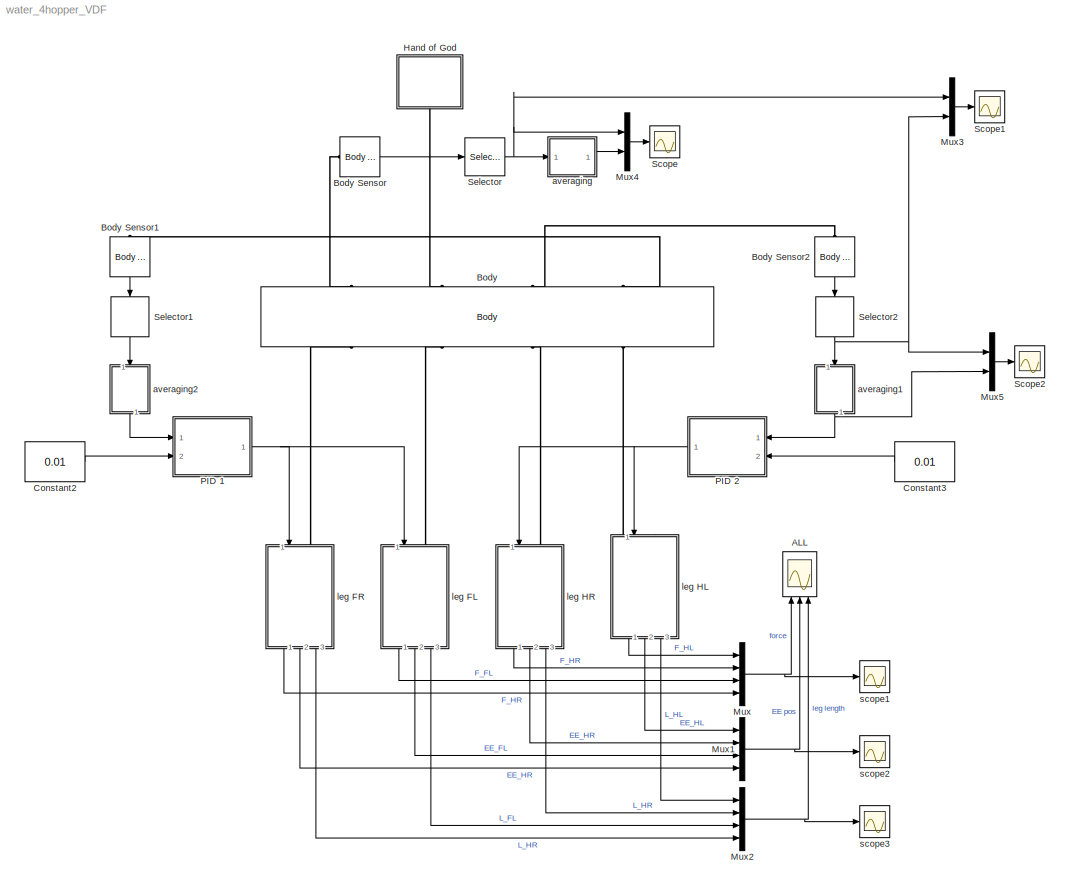
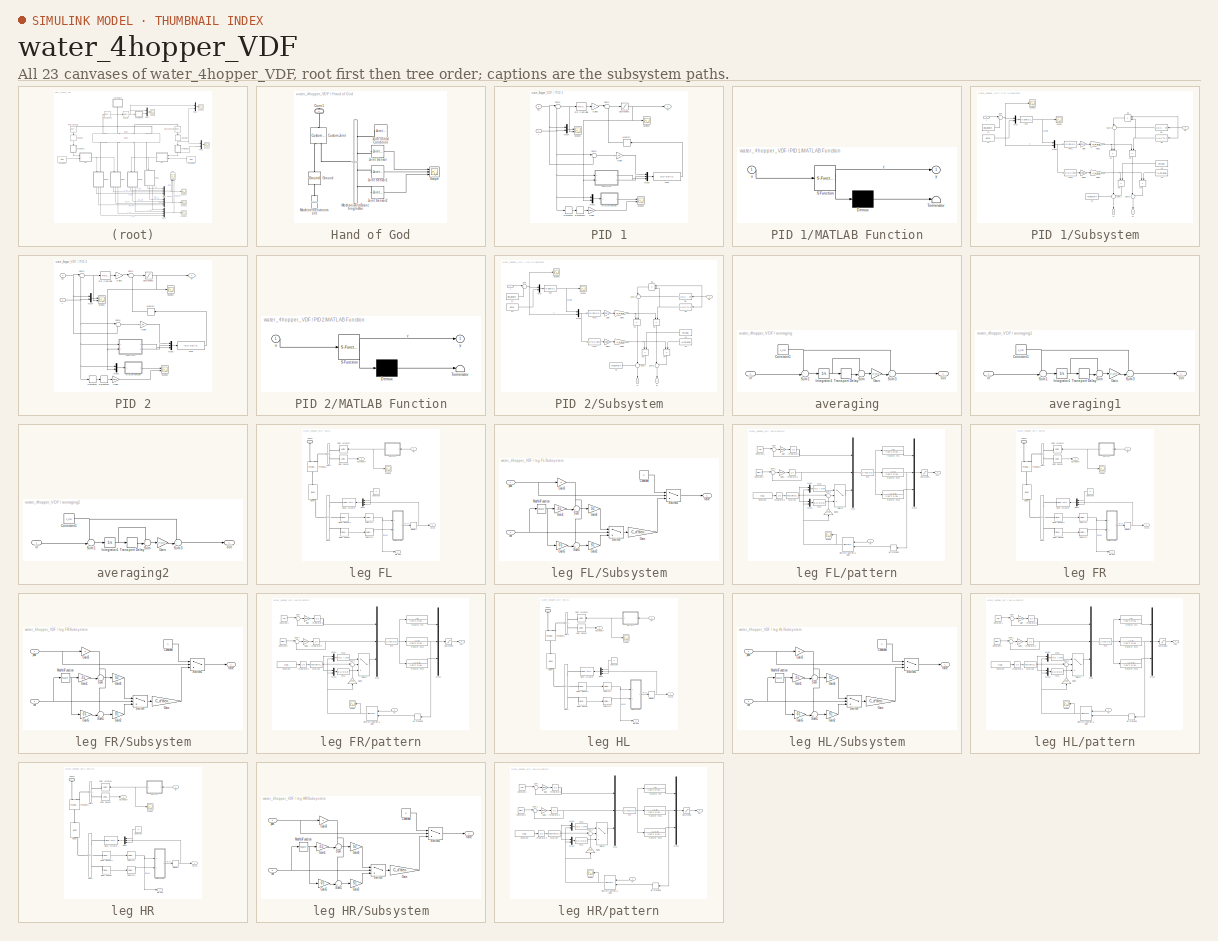
[diagram: thumbnail index - all 23 canvases of the model, root first then tree order]
MODEL water_4hopper_VDF
KIND model
BLOCK [Scope] ALL
  DataFormat = StructureWithTime
  Floating = off
  LimitDataPoints = off
  NumInputPorts = 3
  Ports = [3]
  SID = 1
  SampleTime = 0
  SaveName = ScopeData4
  ShowLegends = on
  TimeRange = 10
  YMax = 7~200~0.06
  YMin = -1~-50~-0.06
BLOCK [Reference] Body  REF=mblibv1/Bodies/Body
  AttachedToCS = CG
  BodyColor = [1 0 0]
  BodyColorSelMode = MACHINE_DEFAULT
  CG = Left$CG$CG_pos$CS1$CS1$m$[0 0 0]$Euler X-Y-Z$deg$WORLD$true$none
  CGPos = CG_pos
  CGRot = [0 0 0]
  CS0Pos = []
  CS0Rot = []
  CS10Pos = []
  CS10Rot = []
  CS11Pos = []
  CS11Rot = []
  CS12Pos = []
  CS12Rot = []
  CS13Pos = []
  CS13Rot = []
  CS14Pos = []
  CS14Rot = []
  CS15Pos = []
  CS15Rot = []
  CS16Pos = []
  CS16Rot = []
  CS17Pos = []
  CS17Rot = []
  CS18Pos = []
  CS18Rot = []
  CS19Pos = []
  CS19Rot = []
  CS1Pos = [0 0 0]
  CS1Rot = [0 0 0]
  CS20Pos = []
  CS20Rot = []
  CS2Pos = TR_FR
  CS2Rot = [0 0 0]
  CS3Pos = TR_FL
  CS3Rot = [0 0 0]
  CS4Pos = TR_HR
  CS4Rot = [0 0 0]
  CS5Pos = TR_HL
  CS5Rot = [0 0 0]
  CS6Pos = TR_HL
  CS6Rot = [0 0 0]
  CS7Pos = TR_FR
  CS7Rot = [0 0 0]
  CS8Pos = []
  CS8Rot = []
  CS9Pos = []
  CS9Rot = []
  ClassName = Body
  Density = 1
  DensityUnits = kg/m^3
  DensityUse = false
  DialogClass = MechanicalBodyBlock
  GraphicsMode = MACHINE_DEFAULT
  Inertia = frame_inertia
  InertiaUnits = kg*m^2
  LConnTagsString = CG|CS1|CS6|CS7
  Mass = mass
  MassUnits = kg
  Ports = [0, 0, 0, 0, 0, 4, 4]
  RConnTagsString = CS2|CS3|CS4|CS5
  SID = 2
  Shape = Cylinder
  ShapeDims = [1 1]
  ShapeUnits = m
  ShapeUse = false
  SourceBlock = mblibv1/Bodies/Body
  SourceType = Body
  UpdateFromCAD = off
  WorkingFrames = Left$CS1$[0 0 0]$Adjoining$Adjoining$m$[0 0 0]$Euler X-Y-Z$deg$WORLD$true$none#Right$CS2$TR_FR$CS1$CS1$m$[0 0 0]$Euler X-Y-Z$deg$WORLD$true$none#Right$CS3$TR_FL$CS1$CS1$m$[0 0 0]$Euler X-Y-Z$deg$WORLD$true$none#Right$CS4$TR_HR$CS1$CS1$m$[0 0 0]$Euler X-Y-Z$deg$WORLD$true$none#Right$CS5$TR_HL$CS1$CS1$m$[0 0 0]$Euler X-Y-Z$deg$WORLD$true$none#Left$CS6$TR_HL$CS1$CS1$m$[0 0 0]$Euler X-Y-Z$deg$WORLD$tr...<+72ch>
BLOCK [Reference] Body Sensor  REF=mblibv1/Sensors & \nActuators/Body Sensor
  Acceleration = off
  AccelerationUnits = m/s^2
  ActiveIO = on
  Angle = on
  AngleUnits = deg
  ArcAcceleration = off
  ArcAccelerationUnits = deg/s^2
  ArcVelocity = off
  ArcVelocityUnits = deg/s
  ClassName = BodySensor
  CoordPosition = on
  CoordPositionUnits = m
  DialogClass = MechanicalSensorBlock
  Muxed = on
  OutputVector = [1]
  PhysicalDomain = Mechanical
  PortType = blob
  Ports = [0, 1, 0, 0, 0, 1]
  Pose = off
  Quaternion = on
  QuaternionDDT = off
  QuaternionDT = off
  QuaternionUnits = off
  ReferenceFrame = Absolute (World)
  SID = 3
  SourceBlock = mblibv1/Sensors & \nActuators/Body Sensor
  SourceType = Body Sensor
  UpdateFromCAD = off
  Velocity = off
  VelocityUnits = m/s
  Width = 3
BLOCK [Reference] Body Sensor1  REF=mblibv1/Sensors & \nActuators/Body Sensor
  Acceleration = off
  AccelerationUnits = m/s^2
  ActiveIO = on
  Angle = on
  AngleUnits = deg
  ArcAcceleration = off
  ArcAccelerationUnits = deg/s^2
  ArcVelocity = off
  ArcVelocityUnits = deg/s
  ClassName = BodySensor
  CoordPosition = on
  CoordPositionUnits = m
  DialogClass = MechanicalSensorBlock
  Muxed = on
  OutputVector = [1]
  PhysicalDomain = Mechanical
  PortType = blob
  Ports = [0, 1, 0, 0, 0, 1]
  Pose = off
  Quaternion = on
  QuaternionDDT = off
  QuaternionDT = off
  QuaternionUnits = off
  ReferenceFrame = Absolute (World)
  SID = 546
  SourceBlock = mblibv1/Sensors & \nActuators/Body Sensor
  SourceType = Body Sensor
  UpdateFromCAD = off
  Velocity = off
  VelocityUnits = m/s
  Width = 3
BLOCK [Reference] Body Sensor2  REF=mblibv1/Sensors & \nActuators/Body Sensor
  Acceleration = off
  AccelerationUnits = m/s^2
  ActiveIO = on
  Angle = on
  AngleUnits = deg
  ArcAcceleration = off
  ArcAccelerationUnits = deg/s^2
  ArcVelocity = off
  ArcVelocityUnits = deg/s
  ClassName = BodySensor
  CoordPosition = on
  CoordPositionUnits = m
  DialogClass = MechanicalSensorBlock
  Muxed = on
  OutputVector = [1]
  PhysicalDomain = Mechanical
  PortType = blob
  Ports = [0, 1, 0, 0, 0, 1]
  Pose = off
  Quaternion = on
  QuaternionDDT = off
  QuaternionDT = off
  QuaternionUnits = off
  ReferenceFrame = Absolute (World)
  SID = 556
  SourceBlock = mblibv1/Sensors & \nActuators/Body Sensor
  SourceType = Body Sensor
  UpdateFromCAD = off
  Velocity = off
  VelocityUnits = m/s
  Width = 3
BLOCK [Constant] Constant2
  SID = 2096
  Value = 0.01
BLOCK [Constant] Constant3
  SID = 195
  Value = 0.01
BLOCK [SubSystem] Hand of God
  FunctionWithSeparateData = off
  MaskHideContents = off
  MinAlgLoopOccurrences = off
  Opaque = off
  Ports = [0, 0, 0, 0, 0, 0, 1]
  PropExecContextOutsideSubsystem = off
  RTWSystemCode = Auto
  RequestExecContextInheritance = off
  SID = 790
BLOCK [PMIOPort] Hand of God/Conn1
  Port = 1
  SID = 799
  Side = Right
BLOCK [Reference] Hand of God/Custom Joint  REF=mblibv1/Joints/Custom Joint
  ClassName = Joint
  CutJoint = off
  DialogClass = JointBlock
  LConnTagsString = __newl0|SA1
  MarkAsCut = off
  NumSAPorts = 1
  P1Axis = [0 1 0]
  P2Axis = [1 0 0]
  P3Axis = []
  Ports = [0, 0, 0, 0, 0, 2, 1]
  PrimitiveProps = P1$World$[0 1 0]$Prismatic#P2$World$[1 0 0]$Prismatic#R1$World$[0 0 1]$Revolute
  Primitives = prismatic
  R1Axis = [0 0 1]
  R2Axis = []
  R3Axis = []
  RConnTagsString = __newr0
  SAxis = []
  SID = 791
  SourceBlock = mblibv1/Joints/Custom Joint
  SourceType = Custom Joint
  UpdateFromCAD = off
BLOCK [Reference] Hand of God/Ground  REF=mblibv1/Bodies/Ground
  ClassName = Ground
  CoordPosition = [0 0 0]
  CoordPositionUnits = m
  DialogClass = GroundBlock
  LeftPortType = env
  MachineId = [1 0]
  PhysicalDomain = Mechanical
  Ports = [0, 0, 0, 0, 0, 1, 1]
  RightPortType = workingframe
  SID = 792
  ShowEnvPort = on
  SourceBlock = mblibv1/Bodies/Ground
  SourceType = Ground
  StateVectorMgrId = 0
  UpdateFromCAD = off
  UserData = DataTag0
  UserDataPersistent = on
BLOCK [Reference] Hand of God/Joint Initial Condition  REF=mblibv1/Sensors & \nActuators/Joint Initial Condition
  ClassName = InitialCondition
  DialogClass = InitialConditionBlock
  InitialConditions = P1$true$y_0$m$deg$dy_0$m/s$deg/s#P2$true$0$m$deg$0$m/s$deg/s#P3$false$0$m$deg$0$m/s$deg/s#R1$true$0$m$deg$0$m/s$deg/s#R2$false$0$m$deg$0$m/s$deg/s#R3$false$10$m$deg$0$m/s$deg/s#S$false$0$m$deg$0$m/s$deg/s
  LeftPortType = blob
  P1PIC = y_0
  P1VIC = dy_0
  P2PIC = 0
  P2VIC = 0
  P3PIC = 0
  P3VIC = 0
  PhysicalDomain = mechanical
  Ports = [0, 0, 0, 0, 0, 0, 1]
  R1PIC = 0
  R1VIC = 0
  R2PIC = 0
  R2VIC = 0
  R3PIC = 0
  R3VIC = 0
  RightPortType = blob
  SID = 793
  SPIC = 0
  SVIC = 0
  SourceBlock = mblibv1/Sensors & \nActuators/Joint Initial Condition
  SourceType = Joint Initial Condition
  UpdateFromCAD = off
BLOCK [Reference] Hand of God/Joint Sensor  REF=mblibv1/Sensors & \nActuators/Joint Sensor
  Acceleration = off
  AccelerationUnits = m/s^2
  ActiveIO = on
  Angle = on
  AngleUnits = deg
  ArcAcceleration = off
  ArcAccelerationUnits = deg/s^2
  ArcVelocity = off
  ArcVelocityUnits = deg/s
  ClassName = JointSensor
  CoordPosition = on
  CoordPositionUnits = m
  DialogClass = MechanicalSensorBlock
  Force = off
  ForceUnits = N
  Muxed = on
  OutputVector = [1]
  PhysicalDomain = Mechanical
  PortType = blob
  Ports = [0, 1, 0, 0, 0, 1]
  Pose = off
  Primitive = P1
  Quaternion = on
  QuaternionDDT = off
  QuaternionDT = off
  QuaternionUnits = off
  ReactionForce = off
  ReactionForceUnits = N
  ReactionMoment = off
  ReactionMomentUnits = N*m
  ReactionReferenceFrame = Absolute (World)
  ReactionSensedSide = Base
  ReferenceFrame = Absolute (World)
  SID = 794
  SourceBlock = mblibv1/Sensors & \nActuators/Joint Sensor
  SourceType = Joint Sensor
  Torque = off
  TorqueUnits = N*m
  UpdateFromCAD = off
  Velocity = off
  VelocityUnits = m/s
  Width = 1
BLOCK [Reference] Hand of God/Joint Sensor1  REF=mblibv1/Sensors & \nActuators/Joint Sensor
  Acceleration = off
  AccelerationUnits = m/s^2
  ActiveIO = on
  Angle = on
  AngleUnits = deg
  ArcAcceleration = off
  ArcAccelerationUnits = deg/s^2
  ArcVelocity = off
  ArcVelocityUnits = deg/s
  ClassName = JointSensor
  CoordPosition = off
  CoordPositionUnits = m
  DialogClass = MechanicalSensorBlock
  Force = off
  ForceUnits = N
  Muxed = on
  OutputVector = [1]
  PhysicalDomain = Mechanical
  PortType = blob
  Ports = [0, 1, 0, 0, 0, 1]
  Pose = off
  Primitive = P2
  Quaternion = on
  QuaternionDDT = off
  QuaternionDT = off
  QuaternionUnits = off
  ReactionForce = off
  ReactionForceUnits = N
  ReactionMoment = off
  ReactionMomentUnits = N*m
  ReactionReferenceFrame = Absolute (World)
  ReactionSensedSide = Base
  ReferenceFrame = Absolute (World)
  SID = 795
  SourceBlock = mblibv1/Sensors & \nActuators/Joint Sensor
  SourceType = Joint Sensor
  Torque = off
  TorqueUnits = N*m
  UpdateFromCAD = off
  Velocity = on
  VelocityUnits = m/s
  Width = 1
BLOCK [Reference] Hand of God/Joint Sensor2  REF=mblibv1/Sensors & \nActuators/Joint Sensor
  Acceleration = off
  AccelerationUnits = m/s^2
  ActiveIO = on
  Angle = on
  AngleUnits = deg
  ArcAcceleration = off
  ArcAccelerationUnits = deg/s^2
  ArcVelocity = off
  ArcVelocityUnits = deg/s
  ClassName = JointSensor
  CoordPosition = on
  CoordPositionUnits = m
  DialogClass = MechanicalSensorBlock
  Force = off
  ForceUnits = N
  Muxed = off
  OutputVector = [1]
  PhysicalDomain = Mechanical
  PortType = blob
  Ports = [0, 1, 0, 0, 0, 1]
  Pose = off
  Primitive = R1
  Quaternion = on
  QuaternionDDT = off
  QuaternionDT = off
  QuaternionUnits = off
  ReactionForce = off
  ReactionForceUnits = N
  ReactionMoment = off
  ReactionMomentUnits = N*m
  ReactionReferenceFrame = Absolute (World)
  ReactionSensedSide = Base
  ReferenceFrame = Absolute (World)
  SID = 801
  SourceBlock = mblibv1/Sensors & \nActuators/Joint Sensor
  SourceType = Joint Sensor
  Torque = off
  TorqueUnits = N*m
  UpdateFromCAD = off
  Velocity = off
  VelocityUnits = m/s
  Width = 1
BLOCK [Reference] Hand of God/Machine\nEnvironment  REF=mblibv1/Bodies/Machine\nEnvironment
  AnalysisType = Forward dynamics
  AngularAssemblyTolerance = 1e-3
  AngularAssemblyToleranceUnits = rad
  BodyColorSelMode = Use model default
  BodyVisualizationType = Use model default body geometries
  ClassName = Environment
  ConstraintAbsTolerance = 1e-4
  ConstraintRelTolerance = 1e-4
  ConstraintSolverType = Stabilizing
  DefaultBodyColor = [1 0 0]
  DialogTemplateClass = MECH.MachineEnvironment
  Dimensionality = Auto-detect
  Gravity = [0 -g 0]
  GravityAsSignal = off
  GravityUnits = m/s^2
  LinearAssemblyTolerance = 1e-3
  LinearAssemblyToleranceUnits = m
  PerturbationSize = 1e-5
  PhysicalDomain = Mechanical
  PortType = env
  Ports = [0, 0, 0, 0, 0, 0, 1]
  RedundancyAnalysisTolerance = 1e-14
  RedundancyAnalysisToleranceType = Automatically select tolerance
  SID = 796
  SourceBlock = mblibv1/Bodies/Machine\nEnvironment
  SourceType = Machine Environment
  StatePerturbationType = Fixed
  SyncWhenCopied = off
  UseRobustSingularityHandling = off
  VisualizeMachine = on
BLOCK [Reference] Hand of God/Mechanical\nBranching\nBar  REF=mblibv1/Utilities/Mechanical\nBranching\nBar
  ClassName = BranchingBar
  DialogClass = MechanicalBranchingBarBlock
  LConnTagsString = _newl0
  NumSAPorts = 4
  Ports = [0, 0, 0, 0, 0, 1, 4]
  RConnTagsString = __newr0|SA2|SA3|SA4
  SID = 797
  SourceBlock = mblibv1/Utilities/Mechanical\nBranching\nBar
  SourceType = Mechanical Branching Bar
  UpdateFromCAD = off
BLOCK [Scope] Hand of God/Scope
  DataFormat = StructureWithTime
  Floating = off
  LimitDataPoints = off
  NumInputPorts = 3
  Ports = [3]
  SID = 798
  SampleTime = 0
  SaveName = mass_data
  SaveToWorkspace = on
  ShowLegends = off
  TimeRange = 5
  YMax = 0.02~0.0004~1
  YMin = -0.01~-0.001~-6
BLOCK [Mux] Mux
  DisplayOption = bar
  Ports = [4, 1]
  SID = 21
BLOCK [Mux] Mux1
  DisplayOption = bar
  Ports = [4, 1]
  SID = 22
BLOCK [Mux] Mux2
  DisplayOption = bar
  Ports = [4, 1]
  SID = 23
BLOCK [Mux] Mux3
  DisplayOption = bar
  Inputs = 2
  Ports = [2, 1]
  SID = 2094
BLOCK [Mux] Mux4
  DisplayOption = bar
  Inputs = 2
  Ports = [2, 1]
  SID = 192
BLOCK [Mux] Mux5
  DisplayOption = bar
  Inputs = 2
  Ports = [2, 1]
  SID = 732
BLOCK [SubSystem] PID 1
  FunctionWithSeparateData = off
  MaskHideContents = off
  MinAlgLoopOccurrences = off
  Opaque = off
  Ports = [2, 1]
  PropExecContextOutsideSubsystem = off
  RTWSystemCode = Auto
  RequestExecContextInheritance = off
  SID = 2166
BLOCK [Derivative] PID 1/Derivative
  SID = 2169
BLOCK [Derivative] PID 1/Derivative1
  SID = 2170
BLOCK [Fcn] PID 1/Fcn5
  Expr = (u(1)-u(3))/u(2)
  SID = 2171
BLOCK [Gain] PID 1/Gain3
  OutDataTypeStr = Inherit: Inherit via internal rule
  ParamDataTypeStr = Inherit: Inherit via internal rule
  SID = 2172
  SaturateOnIntegerOverflow = off
BLOCK [Gain] PID 1/Gain4
  Gain = -K_vir_spring
  OutDataTypeStr = Inherit: Inherit via internal rule
  ParamDataTypeStr = Inherit: Inherit via internal rule
  SID = 2173
  SaturateOnIntegerOverflow = off
BLOCK [Gain] PID 1/Gain5
  Gain = mass
  OutDataTypeStr = Inherit: Inherit via internal rule
  ParamDataTypeStr = Inherit: Inherit via internal rule
  SID = 2174
  SaturateOnIntegerOverflow = off
BLOCK [SubSystem] PID 1/MATLAB Function
  ErrorFcn = Stateflow.Translate.translate
  FunctionWithSeparateData = off
  MaskHideContents = off
  MinAlgLoopOccurrences = off
  Opaque = off
  PermitHierarchicalResolution = ExplicitOnly
  Ports = [1, 1]
  PropExecContextOutsideSubsystem = off
  RTWSystemCode = Auto
  RequestExecContextInheritance = off
  SFBlockType = MATLAB Function
  SID = 2175
  TreatAsAtomicUnit = on
BLOCK [Demux] PID 1/MATLAB Function/ Demux 
  Outputs = 1
  Ports = [1, 1]
  SID = 2175::20
BLOCK [S-Function] PID 1/MATLAB Function/ SFunction 
  EnableBusSupport = on
  FunctionName = sf_sfun
  PortCounts = [1 2]
  Ports = [1, 2]
  SID = 2175::19
  Tag = Stateflow S-Function water_4hopper_VDF 1
BLOCK [Terminator] PID 1/MATLAB Function/ Terminator 
  SID = 2175::22
BLOCK [Inport] PID 1/MATLAB Function/u
  IconDisplay = Port number
  SID = 2175::1
BLOCK [Outport] PID 1/MATLAB Function/y
  IconDisplay = Port number
  SID = 2175::5
BLOCK [Memory] PID 1/Memory
  SID = 2176
  X0 = 0.5
BLOCK [Mux] PID 1/Mux4
  DisplayOption = bar
  Inputs = 2
  Ports = [2, 1]
  SID = 2177
BLOCK [Mux] PID 1/Mux5
  DisplayOption = bar
  Inputs = 3
  Ports = [3, 1]
  SID = 2178
BLOCK [Mux] PID 1/Mux6
  DisplayOption = bar
  Inputs = 2
  Ports = [2, 1]
  SID = 2179
BLOCK [Reference] PID 1/PID Controller  REF=simulink/Continuous/PID Controller
  AntiWindupMode = none
  Controller = PID
  D = K_d
  DOutDataTypeStr = Inherit: Inherit via internal rule
  DOutMax = []
  DOutMin = []
  DParamDataTypeStr = Inherit: Inherit via internal rule
  DParamMax = []
  DParamMin = []
  ExternalReset = none
  FilterContinuousStateAttributes = ''
  FilterMethod = Forward Euler
  FilterOutDataTypeStr = Inherit: Inherit via internal rule
  FilterOutMax = []
  FilterOutMin = []
  FilterRTWStateStorageClass = Auto
  FilterStateMustResolveToSignalObject = off
  Form = Parallel
  I = K_i
  IOutDataTypeStr = Inherit: Inherit via internal rule
  IOutMax = []
  IOutMin = []
  IParamDataTypeStr = Inherit: Inherit via internal rule
  IParamMax = []
  IParamMin = []
  IgnoreLimit = off
  InitialConditionForFilter = 0
  InitialConditionForIntegrator = 0
  InitialConditionSource = internal
  IntegratorContinuousStateAttributes = ''
  IntegratorMethod = Forward Euler
  IntegratorOutDataTypeStr = Inherit: Inherit via internal rule
  IntegratorOutMax = []
  IntegratorOutMin = []
  IntegratorRTWStateStorageClass = Auto
  IntegratorStateMustResolveToSignalObject = off
  Kb = 1
  KbOutDataTypeStr = Inherit: Inherit via internal rule
  KbOutMax = []
  KbOutMin = []
  KbParamDataTypeStr = Inherit: Inherit via internal rule
  KbParamMax = []
  KbParamMin = []
  Kt = 1
  KtOutDataTypeStr = Inherit: Inherit via internal rule
  KtOutMax = []
  KtOutMin = []
  KtParamDataTypeStr = Inherit: Inherit via internal rule
  KtParamMax = []
  KtParamMin = []
  LimitOutput = off
  LinearizeAsGain = on
  LockScale = off
  LowerSaturationLimit = -inf
  N = 100
  NOutDataTypeStr = Inherit: Inherit via internal rule
  NOutMax = []
  NOutMin = []
  NParamDataTypeStr = Inherit: Inherit via internal rule
  NParamMax = []
  NParamMin = []
  P = K_p
  POutDataTypeStr = Inherit: Inherit via internal rule
  POutMax = []
  POutMin = []
  PParamDataTypeStr = Inherit: Inherit via internal rule
  PParamMax = []
  PParamMin = []
  Ports = [1, 1]
  RndMeth = Floor
  SID = 2180
  SampleTime = 1
  SaturateOnIntegerOverflow = off
  SaturationOutDataTypeStr = Inherit: Same as input
  SaturationOutMax = []
  SaturationOutMin = []
  SourceBlock = simulink/Continuous/PID Controller
  SourceType = PID 1dof
  SumAccumDataTypeStr = Inherit: Inherit via internal rule
  SumDAccumDataTypeStr = Inherit: Inherit via internal rule
  SumDOutDataTypeStr = Inherit: Inherit via internal rule
  SumDOutMax = []
  SumDOutMin = []
  SumI1AccumDataTypeStr = Inherit: Inherit via internal rule
  SumI1OutDataTypeStr = Inherit: Inherit via internal rule
  SumI1OutMax = []
  SumI1OutMin = []
  SumI2AccumDataTypeStr = Inherit: Inherit via internal rule
  SumI2OutDataTypeStr = Inherit: Inherit via internal rule
  SumI2OutMax = []
  SumI2OutMin = []
  SumI3AccumDataTypeStr = Inherit: Inherit via internal rule
  SumI3OutDataTypeStr = Inherit: Inherit via internal rule
  SumI3OutMax = []
  SumI3OutMin = []
  SumOutDataTypeStr = Inherit: Inherit via internal rule
  SumOutMax = []
  SumOutMin = []
  TimeDomain = Continuous-time
  TrackingMode = off
  UpperSaturationLimit = inf
  ZeroCross = on
BLOCK [Saturate] PID 1/Saturation2
  InputPortMap = u0
  LowerLimit = 0.3
  Ports = [1, 1]
  SID = 2181
  UpperLimit = 0.7
BLOCK [Scope] PID 1/Scope1
  DataFormat = StructureWithTime
  Floating = off
  LimitDataPoints = off
  NumInputPorts = 2
  Ports = [2]
  SID = 2182
  SampleTime = 0
  SaveName = ScopeData1
  ShowLegends = off
  TimeRange = 5
  YMax = 0.017~-0.00014
  YMin = 0.01~-0.000175
  ZoomMode = yonly
BLOCK [Scope] PID 1/Scope3
  DataFormat = StructureWithTime
  Floating = off
  LimitDataPoints = off
  NumInputPorts = 1
  Ports = [1]
  SID = 2183
  SampleTime = 0
  SaveName = ScopeData4
  ShowLegends = off
BLOCK [Scope] PID 1/Scope8
  DataFormat = StructureWithTime
  Floating = off
  LimitDataPoints = off
  NumInputPorts = 2
  Ports = [2]
  SID = 2184
  SampleTime = 0
  SaveName = ScopeData9
  ShowLegends = off
  YMax = 5~5
  YMin = -5~-5
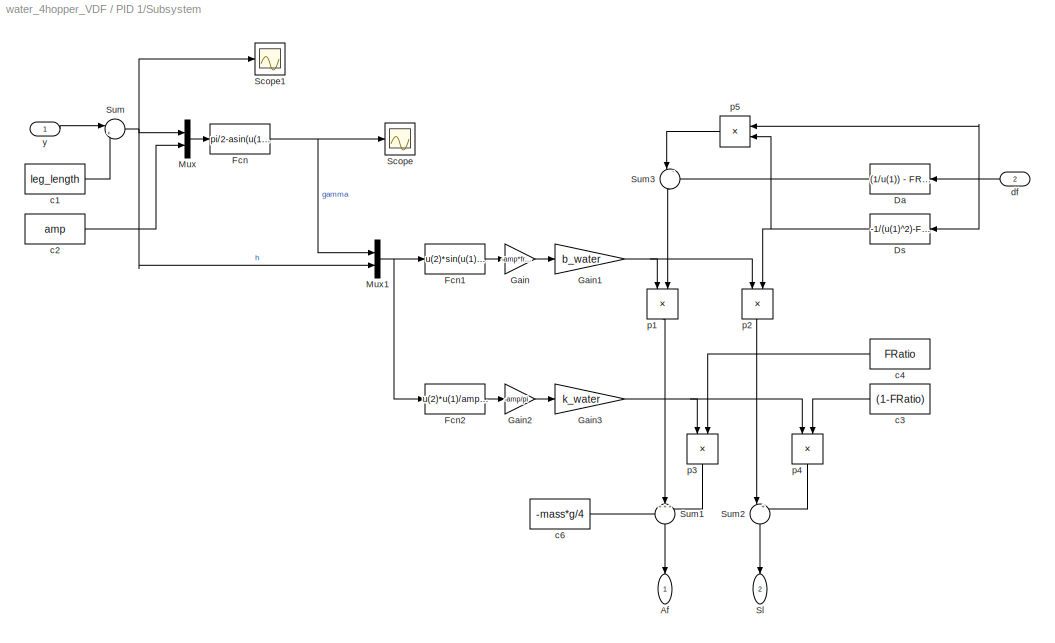
BLOCK [SubSystem] PID 1/Subsystem
  FunctionWithSeparateData = off
  MaskHideContents = off
  MinAlgLoopOccurrences = off
  Opaque = off
  Ports = [2, 2]
  PropExecContextOutsideSubsystem = off
  RTWSystemCode = Auto
  RequestExecContextInheritance = off
  SID = 2185
BLOCK [Outport] PID 1/Subsystem/Af
  IconDisplay = Port number
  SID = 2215
BLOCK [Fcn] PID 1/Subsystem/Da
  Expr = (1/u(1)) - FRatio/(1-u(1))
  SID = 2188
BLOCK [Fcn] PID 1/Subsystem/Ds
  Expr = -1/(u(1)^2)-FRatio/((1-u(1))^2)
  SID = 2189
BLOCK [Fcn] PID 1/Subsystem/Fcn
  Expr = pi/2-asin(u(1)/u(2))
  SID = 2190
BLOCK [Fcn] PID 1/Subsystem/Fcn1
  Expr = u(2)*sin(u(1))-amp*u(1)
  SID = 2191
BLOCK [Fcn] PID 1/Subsystem/Fcn2
  Expr = u(2)*u(1)/amp-sin(u(1))
  SID = 2192
BLOCK [Gain] PID 1/Subsystem/Gain
  Gain = -amp*freq^2/8/pi
  OutDataTypeStr = Inherit: Inherit via internal rule
  ParamDataTypeStr = Inherit: Inherit via internal rule
  SID = 2193
  SaturateOnIntegerOverflow = off
BLOCK [Gain] PID 1/Subsystem/Gain1
  Gain = b_water
  OutDataTypeStr = Inherit: Inherit via internal rule
  ParamDataTypeStr = Inherit: Inherit via internal rule
  SID = 2194
  SaturateOnIntegerOverflow = off
BLOCK [Gain] PID 1/Subsystem/Gain2
  Gain = -amp/pi
  OutDataTypeStr = Inherit: Inherit via internal rule
  ParamDataTypeStr = Inherit: Inherit via internal rule
  SID = 2195
  SaturateOnIntegerOverflow = off
BLOCK [Gain] PID 1/Subsystem/Gain3
  Gain = k_water
  OutDataTypeStr = Inherit: Inherit via internal rule
  ParamDataTypeStr = Inherit: Inherit via internal rule
  SID = 2196
  SaturateOnIntegerOverflow = off
BLOCK [Mux] PID 1/Subsystem/Mux
  DisplayOption = bar
  Inputs = 2
  Ports = [2, 1]
  SID = 2197
BLOCK [Mux] PID 1/Subsystem/Mux1
  DisplayOption = bar
  Inputs = 2
  Ports = [2, 1]
  SID = 2198
BLOCK [Scope] PID 1/Subsystem/Scope
  DataFormat = StructureWithTime
  Floating = off
  LimitDataPoints = off
  NumInputPorts = 1
  Ports = [1]
  SID = 2199
  SampleTime = 0
  SaveName = ScopeData3
  ShowLegends = off
BLOCK [Scope] PID 1/Subsystem/Scope1
  DataFormat = StructureWithTime
  Floating = off
  LimitDataPoints = off
  NumInputPorts = 1
  Ports = [1]
  SID = 2200
  SampleTime = 0
  SaveName = ScopeData5
  ShowLegends = off
BLOCK [Outport] PID 1/Subsystem/Sl
  IconDisplay = Port number
  Port = 2
  SID = 2216
BLOCK [Sum] PID 1/Subsystem/Sum
  IconShape = round
  InputSameDT = off
  Inputs = |+-
  OutDataTypeStr = Inherit: Inherit via internal rule
  Ports = [2, 1]
  SID = 2201
  SaturateOnIntegerOverflow = off
BLOCK [Sum] PID 1/Subsystem/Sum1
  IconShape = round
  InputSameDT = off
  Inputs = +++
  OutDataTypeStr = Inherit: Inherit via internal rule
  Ports = [3, 1]
  SID = 2202
  SaturateOnIntegerOverflow = off
BLOCK [Sum] PID 1/Subsystem/Sum2
  IconShape = round
  InputSameDT = off
  Inputs = |++
  OutDataTypeStr = Inherit: Inherit via internal rule
  Ports = [2, 1]
  SID = 2203
  SaturateOnIntegerOverflow = off
BLOCK [Sum] PID 1/Subsystem/Sum3
  IconShape = round
  InputSameDT = off
  Inputs = |-+
  OutDataTypeStr = Inherit: Inherit via internal rule
  Ports = [2, 1]
  SID = 2204
  SaturateOnIntegerOverflow = off
BLOCK [Constant] PID 1/Subsystem/c1
  SID = 2205
  Value = leg_length
BLOCK [Constant] PID 1/Subsystem/c2
  SID = 2206
  Value = amp
BLOCK [Constant] PID 1/Subsystem/c3
  SID = 2207
  Value = (1-FRatio)
BLOCK [Constant] PID 1/Subsystem/c4
  SID = 2208
  Value = FRatio
BLOCK [Constant] PID 1/Subsystem/c6
  SID = 2209
  Value = -mass*g/4
BLOCK [Inport] PID 1/Subsystem/df
  IconDisplay = Port number
  Port = 2
  SID = 2187
BLOCK [Product] PID 1/Subsystem/p1
  InputSameDT = off
  OutDataTypeStr = Inherit: Inherit via internal rule
  Ports = [2, 1]
  SID = 2210
  SaturateOnIntegerOverflow = off
BLOCK [Product] PID 1/Subsystem/p2
  InputSameDT = off
  OutDataTypeStr = Inherit: Inherit via internal rule
  Ports = [2, 1]
  SID = 2211
  SaturateOnIntegerOverflow = off
BLOCK [Product] PID 1/Subsystem/p3
  InputSameDT = off
  OutDataTypeStr = Inherit: Inherit via internal rule
  Ports = [2, 1]
  SID = 2212
  SaturateOnIntegerOverflow = off
BLOCK [Product] PID 1/Subsystem/p4
  InputSameDT = off
  OutDataTypeStr = Inherit: Inherit via internal rule
  Ports = [2, 1]
  SID = 2213
  SaturateOnIntegerOverflow = off
BLOCK [Product] PID 1/Subsystem/p5
  InputSameDT = off
  OutDataTypeStr = Inherit: Inherit via internal rule
  Ports = [2, 1]
  SID = 2214
  SaturateOnIntegerOverflow = off
BLOCK [Inport] PID 1/Subsystem/y
  IconDisplay = Port number
  SID = 2186
BLOCK [Sum] PID 1/Sum3
  IconShape = round
  InputSameDT = off
  Inputs = |+-
  OutDataTypeStr = Inherit: Inherit via internal rule
  Ports = [2, 1]
  SID = 2217
  SaturateOnIntegerOverflow = off
BLOCK [Sum] PID 1/Sum4
  IconShape = round
  InputSameDT = off
  Inputs = |++
  OutDataTypeStr = Inherit: Inherit via internal rule
  Ports = [2, 1]
  SID = 2218
  SaturateOnIntegerOverflow = off
BLOCK [Sum] PID 1/Sum6
  IconShape = round
  InputSameDT = off
  Inputs = |+-
  OutDataTypeStr = Inherit: Inherit via internal rule
  Ports = [2, 1]
  SID = 2219
  SaturateOnIntegerOverflow = off
BLOCK [Outport] PID 1/df
  IconDisplay = Port number
  SID = 2220
BLOCK [Inport] PID 1/hd
  IconDisplay = Port number
  Port = 2
  SID = 2168
BLOCK [Inport] PID 1/y
  IconDisplay = Port number
  SID = 2167
BLOCK [SubSystem] PID 2
  FunctionWithSeparateData = off
  MaskHideContents = off
  MinAlgLoopOccurrences = off
  Opaque = off
  Ports = [2, 1]
  PropExecContextOutsideSubsystem = off
  RTWSystemCode = Auto
  RequestExecContextInheritance = off
  SID = 2222
BLOCK [Derivative] PID 2/Derivative
  SID = 2225
BLOCK [Derivative] PID 2/Derivative1
  SID = 2226
BLOCK [Fcn] PID 2/Fcn5
  Expr = (u(1)-u(3))/u(2)
  SID = 2227
BLOCK [Gain] PID 2/Gain3
  OutDataTypeStr = Inherit: Inherit via internal rule
  ParamDataTypeStr = Inherit: Inherit via internal rule
  SID = 2228
  SaturateOnIntegerOverflow = off
BLOCK [Gain] PID 2/Gain4
  Gain = -K_vir_spring
  OutDataTypeStr = Inherit: Inherit via internal rule
  ParamDataTypeStr = Inherit: Inherit via internal rule
  SID = 2229
  SaturateOnIntegerOverflow = off
BLOCK [Gain] PID 2/Gain5
  Gain = mass
  OutDataTypeStr = Inherit: Inherit via internal rule
  ParamDataTypeStr = Inherit: Inherit via internal rule
  SID = 2230
  SaturateOnIntegerOverflow = off
BLOCK [SubSystem] PID 2/MATLAB Function
  ErrorFcn = Stateflow.Translate.translate
  FunctionWithSeparateData = off
  MaskHideContents = off
  MinAlgLoopOccurrences = off
  Opaque = off
  PermitHierarchicalResolution = ExplicitOnly
  Ports = [1, 1]
  PropExecContextOutsideSubsystem = off
  RTWSystemCode = Auto
  RequestExecContextInheritance = off
  SFBlockType = MATLAB Function
  SID = 2231
  TreatAsAtomicUnit = on
BLOCK [Demux] PID 2/MATLAB Function/ Demux 
  Outputs = 1
  Ports = [1, 1]
  SID = 2231::20
BLOCK [S-Function] PID 2/MATLAB Function/ SFunction 
  EnableBusSupport = on
  FunctionName = sf_sfun
  PortCounts = [1 2]
  Ports = [1, 2]
  SID = 2231::19
  Tag = Stateflow S-Function water_4hopper_VDF 2
BLOCK [Terminator] PID 2/MATLAB Function/ Terminator 
  SID = 2231::22
BLOCK [Inport] PID 2/MATLAB Function/u
  IconDisplay = Port number
  SID = 2231::1
BLOCK [Outport] PID 2/MATLAB Function/y
  IconDisplay = Port number
  SID = 2231::5
BLOCK [Memory] PID 2/Memory
  SID = 2232
  X0 = 0.5
BLOCK [Mux] PID 2/Mux4
  DisplayOption = bar
  Inputs = 2
  Ports = [2, 1]
  SID = 2233
BLOCK [Mux] PID 2/Mux5
  DisplayOption = bar
  Inputs = 3
  Ports = [3, 1]
  SID = 2234
BLOCK [Mux] PID 2/Mux6
  DisplayOption = bar
  Inputs = 2
  Ports = [2, 1]
  SID = 2235
BLOCK [Reference] PID 2/PID Controller  REF=simulink/Continuous/PID Controller
  AntiWindupMode = none
  Controller = PID
  D = K_d
  DOutDataTypeStr = Inherit: Inherit via internal rule
  DOutMax = []
  DOutMin = []
  DParamDataTypeStr = Inherit: Inherit via internal rule
  DParamMax = []
  DParamMin = []
  ExternalReset = none
  FilterContinuousStateAttributes = ''
  FilterMethod = Forward Euler
  FilterOutDataTypeStr = Inherit: Inherit via internal rule
  FilterOutMax = []
  FilterOutMin = []
  FilterRTWStateStorageClass = Auto
  FilterStateMustResolveToSignalObject = off
  Form = Parallel
  I = K_i
  IOutDataTypeStr = Inherit: Inherit via internal rule
  IOutMax = []
  IOutMin = []
  IParamDataTypeStr = Inherit: Inherit via internal rule
  IParamMax = []
  IParamMin = []
  IgnoreLimit = off
  InitialConditionForFilter = 0
  InitialConditionForIntegrator = 0
  InitialConditionSource = internal
  IntegratorContinuousStateAttributes = ''
  IntegratorMethod = Forward Euler
  IntegratorOutDataTypeStr = Inherit: Inherit via internal rule
  IntegratorOutMax = []
  IntegratorOutMin = []
  IntegratorRTWStateStorageClass = Auto
  IntegratorStateMustResolveToSignalObject = off
  Kb = 1
  KbOutDataTypeStr = Inherit: Inherit via internal rule
  KbOutMax = []
  KbOutMin = []
  KbParamDataTypeStr = Inherit: Inherit via internal rule
  KbParamMax = []
  KbParamMin = []
  Kt = 1
  KtOutDataTypeStr = Inherit: Inherit via internal rule
  KtOutMax = []
  KtOutMin = []
  KtParamDataTypeStr = Inherit: Inherit via internal rule
  KtParamMax = []
  KtParamMin = []
  LimitOutput = off
  LinearizeAsGain = on
  LockScale = off
  LowerSaturationLimit = -inf
  N = 100
  NOutDataTypeStr = Inherit: Inherit via internal rule
  NOutMax = []
  NOutMin = []
  NParamDataTypeStr = Inherit: Inherit via internal rule
  NParamMax = []
  NParamMin = []
  P = K_p
  POutDataTypeStr = Inherit: Inherit via internal rule
  POutMax = []
  POutMin = []
  PParamDataTypeStr = Inherit: Inherit via internal rule
  PParamMax = []
  PParamMin = []
  Ports = [1, 1]
  RndMeth = Floor
  SID = 2236
  SampleTime = 1
  SaturateOnIntegerOverflow = off
  SaturationOutDataTypeStr = Inherit: Same as input
  SaturationOutMax = []
  SaturationOutMin = []
  SourceBlock = simulink/Continuous/PID Controller
  SourceType = PID 1dof
  SumAccumDataTypeStr = Inherit: Inherit via internal rule
  SumDAccumDataTypeStr = Inherit: Inherit via internal rule
  SumDOutDataTypeStr = Inherit: Inherit via internal rule
  SumDOutMax = []
  SumDOutMin = []
  SumI1AccumDataTypeStr = Inherit: Inherit via internal rule
  SumI1OutDataTypeStr = Inherit: Inherit via internal rule
  SumI1OutMax = []
  SumI1OutMin = []
  SumI2AccumDataTypeStr = Inherit: Inherit via internal rule
  SumI2OutDataTypeStr = Inherit: Inherit via internal rule
  SumI2OutMax = []
  SumI2OutMin = []
  SumI3AccumDataTypeStr = Inherit: Inherit via internal rule
  SumI3OutDataTypeStr = Inherit: Inherit via internal rule
  SumI3OutMax = []
  SumI3OutMin = []
  SumOutDataTypeStr = Inherit: Inherit via internal rule
  SumOutMax = []
  SumOutMin = []
  TimeDomain = Continuous-time
  TrackingMode = off
  UpperSaturationLimit = inf
  ZeroCross = on
BLOCK [Saturate] PID 2/Saturation2
  InputPortMap = u0
  LowerLimit = 0.3
  Ports = [1, 1]
  SID = 2237
  UpperLimit = 0.7
BLOCK [Scope] PID 2/Scope1
  DataFormat = StructureWithTime
  Floating = off
  LimitDataPoints = off
  NumInputPorts = 2
  Ports = [2]
  SID = 2238
  SampleTime = 0
  SaveName = ScopeData1
  ShowLegends = off
  TimeRange = 1
  YMax = 0.012~0.00225
  YMin = 0.00775~-0.002
  ZoomMode = yonly
BLOCK [Scope] PID 2/Scope3
  DataFormat = StructureWithTime
  Floating = off
  LimitDataPoints = off
  NumInputPorts = 1
  Ports = [1]
  SID = 2239
  SampleTime = 0
  SaveName = ScopeData4
  ShowLegends = off
BLOCK [Scope] PID 2/Scope8
  DataFormat = StructureWithTime
  Floating = off
  LimitDataPoints = off
  NumInputPorts = 2
  Ports = [2]
  SID = 2240
  SampleTime = 0
  SaveName = ScopeData9
  ShowLegends = off
  YMax = 5~5
  YMin = -5~-5
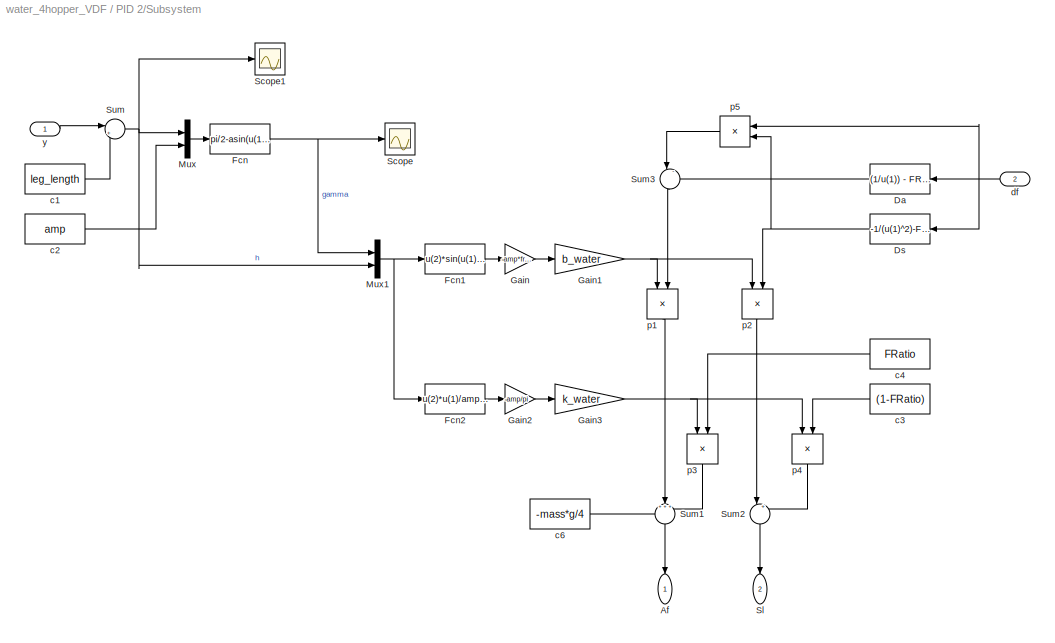
BLOCK [SubSystem] PID 2/Subsystem
  FunctionWithSeparateData = off
  MaskHideContents = off
  MinAlgLoopOccurrences = off
  Opaque = off
  Ports = [2, 2]
  PropExecContextOutsideSubsystem = off
  RTWSystemCode = Auto
  RequestExecContextInheritance = off
  SID = 2241
BLOCK [Outport] PID 2/Subsystem/Af
  IconDisplay = Port number
  SID = 2271
BLOCK [Fcn] PID 2/Subsystem/Da
  Expr = (1/u(1)) - FRatio/(1-u(1))
  SID = 2244
BLOCK [Fcn] PID 2/Subsystem/Ds
  Expr = -1/(u(1)^2)-FRatio/((1-u(1))^2)
  SID = 2245
BLOCK [Fcn] PID 2/Subsystem/Fcn
  Expr = pi/2-asin(u(1)/u(2))
  SID = 2246
BLOCK [Fcn] PID 2/Subsystem/Fcn1
  Expr = u(2)*sin(u(1))-amp*u(1)
  SID = 2247
BLOCK [Fcn] PID 2/Subsystem/Fcn2
  Expr = u(2)*u(1)/amp-sin(u(1))
  SID = 2248
BLOCK [Gain] PID 2/Subsystem/Gain
  Gain = -amp*freq^2/8/pi
  OutDataTypeStr = Inherit: Inherit via internal rule
  ParamDataTypeStr = Inherit: Inherit via internal rule
  SID = 2249
  SaturateOnIntegerOverflow = off
BLOCK [Gain] PID 2/Subsystem/Gain1
  Gain = b_water
  OutDataTypeStr = Inherit: Inherit via internal rule
  ParamDataTypeStr = Inherit: Inherit via internal rule
  SID = 2250
  SaturateOnIntegerOverflow = off
BLOCK [Gain] PID 2/Subsystem/Gain2
  Gain = -amp/pi
  OutDataTypeStr = Inherit: Inherit via internal rule
  ParamDataTypeStr = Inherit: Inherit via internal rule
  SID = 2251
  SaturateOnIntegerOverflow = off
BLOCK [Gain] PID 2/Subsystem/Gain3
  Gain = k_water
  OutDataTypeStr = Inherit: Inherit via internal rule
  ParamDataTypeStr = Inherit: Inherit via internal rule
  SID = 2252
  SaturateOnIntegerOverflow = off
BLOCK [Mux] PID 2/Subsystem/Mux
  DisplayOption = bar
  Inputs = 2
  Ports = [2, 1]
  SID = 2253
BLOCK [Mux] PID 2/Subsystem/Mux1
  DisplayOption = bar
  Inputs = 2
  Ports = [2, 1]
  SID = 2254
BLOCK [Scope] PID 2/Subsystem/Scope
  DataFormat = StructureWithTime
  Floating = off
  LimitDataPoints = off
  NumInputPorts = 1
  Ports = [1]
  SID = 2255
  SampleTime = 0
  SaveName = ScopeData3
  ShowLegends = off
BLOCK [Scope] PID 2/Subsystem/Scope1
  DataFormat = StructureWithTime
  Floating = off
  LimitDataPoints = off
  NumInputPorts = 1
  Ports = [1]
  SID = 2256
  SampleTime = 0
  SaveName = ScopeData5
  ShowLegends = off
BLOCK [Outport] PID 2/Subsystem/Sl
  IconDisplay = Port number
  Port = 2
  SID = 2272
BLOCK [Sum] PID 2/Subsystem/Sum
  IconShape = round
  InputSameDT = off
  Inputs = |+-
  OutDataTypeStr = Inherit: Inherit via internal rule
  Ports = [2, 1]
  SID = 2257
  SaturateOnIntegerOverflow = off
BLOCK [Sum] PID 2/Subsystem/Sum1
  IconShape = round
  InputSameDT = off
  Inputs = +++
  OutDataTypeStr = Inherit: Inherit via internal rule
  Ports = [3, 1]
  SID = 2258
  SaturateOnIntegerOverflow = off
BLOCK [Sum] PID 2/Subsystem/Sum2
  IconShape = round
  InputSameDT = off
  Inputs = |++
  OutDataTypeStr = Inherit: Inherit via internal rule
  Ports = [2, 1]
  SID = 2259
  SaturateOnIntegerOverflow = off
BLOCK [Sum] PID 2/Subsystem/Sum3
  IconShape = round
  InputSameDT = off
  Inputs = |-+
  OutDataTypeStr = Inherit: Inherit via internal rule
  Ports = [2, 1]
  SID = 2260
  SaturateOnIntegerOverflow = off
BLOCK [Constant] PID 2/Subsystem/c1
  SID = 2261
  Value = leg_length
BLOCK [Constant] PID 2/Subsystem/c2
  SID = 2262
  Value = amp
BLOCK [Constant] PID 2/Subsystem/c3
  SID = 2263
  Value = (1-FRatio)
BLOCK [Constant] PID 2/Subsystem/c4
  SID = 2264
  Value = FRatio
BLOCK [Constant] PID 2/Subsystem/c6
  SID = 2265
  Value = -mass*g/4
BLOCK [Inport] PID 2/Subsystem/df
  IconDisplay = Port number
  Port = 2
  SID = 2243
BLOCK [Product] PID 2/Subsystem/p1
  InputSameDT = off
  OutDataTypeStr = Inherit: Inherit via internal rule
  Ports = [2, 1]
  SID = 2266
  SaturateOnIntegerOverflow = off
BLOCK [Product] PID 2/Subsystem/p2
  InputSameDT = off
  OutDataTypeStr = Inherit: Inherit via internal rule
  Ports = [2, 1]
  SID = 2267
  SaturateOnIntegerOverflow = off
BLOCK [Product] PID 2/Subsystem/p3
  InputSameDT = off
  OutDataTypeStr = Inherit: Inherit via internal rule
  Ports = [2, 1]
  SID = 2268
  SaturateOnIntegerOverflow = off
BLOCK [Product] PID 2/Subsystem/p4
  InputSameDT = off
  OutDataTypeStr = Inherit: Inherit via internal rule
  Ports = [2, 1]
  SID = 2269
  SaturateOnIntegerOverflow = off
BLOCK [Product] PID 2/Subsystem/p5
  InputSameDT = off
  OutDataTypeStr = Inherit: Inherit via internal rule
  Ports = [2, 1]
  SID = 2270
  SaturateOnIntegerOverflow = off
BLOCK [Inport] PID 2/Subsystem/y
  IconDisplay = Port number
  SID = 2242
BLOCK [Sum] PID 2/Sum3
  IconShape = round
  InputSameDT = off
  Inputs = |+-
  OutDataTypeStr = Inherit: Inherit via internal rule
  Ports = [2, 1]
  SID = 2273
  SaturateOnIntegerOverflow = off
BLOCK [Sum] PID 2/Sum4
  IconShape = round
  InputSameDT = off
  Inputs = |++
  OutDataTypeStr = Inherit: Inherit via internal rule
  Ports = [2, 1]
  SID = 2274
  SaturateOnIntegerOverflow = off
BLOCK [Sum] PID 2/Sum6
  IconShape = round
  InputSameDT = off
  Inputs = |+-
  OutDataTypeStr = Inherit: Inherit via internal rule
  Ports = [2, 1]
  SID = 2275
  SaturateOnIntegerOverflow = off
BLOCK [Outport] PID 2/df
  IconDisplay = Port number
  SID = 2276
BLOCK [Inport] PID 2/hd
  IconDisplay = Port number
  Port = 2
  SID = 2224
BLOCK [Inport] PID 2/y
  IconDisplay = Port number
  SID = 2223
BLOCK [Scope] Scope
  DataFormat = StructureWithTime
  Floating = off
  LimitDataPoints = off
  NumInputPorts = 1
  Ports = [1]
  SID = 26
  SampleTime = 0
  ShowLegends = off
  TimeRange = 5
  YMax = 0.02
  YMin = -0.025
BLOCK [Scope] Scope1
  DataFormat = StructureWithTime
  Floating = off
  LimitDataPoints = off
  NumInputPorts = 1
  Ports = [1]
  SID = 2095
  SampleTime = 0
  SaveName = ScopeData5
  ShowLegends = off
  YMax = 0.09575
  YMin = 0.0915
BLOCK [Scope] Scope2
  DataFormat = StructureWithTime
  Floating = off
  LimitDataPoints = off
  NumInputPorts = 1
  Ports = [1]
  SID = 733
  SampleTime = 0
  SaveName = ScopeData12
  ShowLegends = off
  YMax = 0.0098
  YMin = 0.008
BLOCK [Selector] Selector
  IndexOptions = Index vector (dialog)
  Indices = [2]
  InputPortWidth = 3
  OutputSizes = 1
  Ports = [1, 1]
  SID = 27
BLOCK [Selector] Selector1
  IndexOptions = Index vector (dialog)
  Indices = [2]
  InputPortWidth = 3
  OutputSizes = 1
  Ports = [1, 1]
  SID = 547
BLOCK [Selector] Selector2
  IndexOptions = Index vector (dialog)
  Indices = [2]
  InputPortWidth = 3
  OutputSizes = 1
  Ports = [1, 1]
  SID = 557
BLOCK [SubSystem] averaging
  FunctionWithSeparateData = off
  MaskHideContents = off
  MinAlgLoopOccurrences = off
  Opaque = off
  Ports = [1, 1]
  PropExecContextOutsideSubsystem = off
  RTWSystemCode = Auto
  RequestExecContextInheritance = off
  SID = 763
BLOCK [Constant] averaging/Constant1
  SID = 758
  Value = x_init
BLOCK [Gain] averaging/Gain
  Gain = 1/T_win
  OutDataTypeStr = Inherit: Inherit via internal rule
  ParamDataTypeStr = Inherit: Inherit via internal rule
  SID = 753
  SaturateOnIntegerOverflow = off
BLOCK [Integrator] averaging/Integrator1
  Ports = [1, 1]
  SID = 755
BLOCK [Sum] averaging/Sum
  IconShape = round
  InputSameDT = off
  Inputs = +-|
  OutDataTypeStr = Inherit: Inherit via internal rule
  Ports = [2, 1]
  SID = 751
  SaturateOnIntegerOverflow = off
BLOCK [Sum] averaging/Sum1
  IconShape = round
  InputSameDT = off
  Inputs = -+|
  OutDataTypeStr = Inherit: Inherit via internal rule
  Ports = [2, 1]
  SID = 757
  SaturateOnIntegerOverflow = off
BLOCK [Sum] averaging/Sum3
  IconShape = round
  InputSameDT = off
  Inputs = ++|
  OutDataTypeStr = Inherit: Inherit via internal rule
  Ports = [2, 1]
  SID = 760
  SaturateOnIntegerOverflow = off
BLOCK [TransportDelay] averaging/Transport Delay
  DelayTime = T_win
  Ports = [1, 1]
  SID = 734
BLOCK [Inport] averaging/in
  IconDisplay = Port number
  SID = 764
BLOCK [Outport] averaging/out
  IconDisplay = Port number
  SID = 765
BLOCK [SubSystem] averaging1
  FunctionWithSeparateData = off
  MaskHideContents = off
  MinAlgLoopOccurrences = off
  Opaque = off
  Ports = [1, 1]
  PropExecContextOutsideSubsystem = off
  RTWSystemCode = Auto
  RequestExecContextInheritance = off
  SID = 766
BLOCK [Constant] averaging1/Constant1
  SID = 768
  Value = x_init
BLOCK [Gain] averaging1/Gain
  Gain = 1/T_win
  OutDataTypeStr = Inherit: Inherit via internal rule
  ParamDataTypeStr = Inherit: Inherit via internal rule
  SID = 769
  SaturateOnIntegerOverflow = off
BLOCK [Integrator] averaging1/Integrator1
  Ports = [1, 1]
  SID = 770
BLOCK [Sum] averaging1/Sum
  IconShape = round
  InputSameDT = off
  Inputs = +-|
  OutDataTypeStr = Inherit: Inherit via internal rule
  Ports = [2, 1]
  SID = 771
  SaturateOnIntegerOverflow = off
BLOCK [Sum] averaging1/Sum1
  IconShape = round
  InputSameDT = off
  Inputs = -+|
  OutDataTypeStr = Inherit: Inherit via internal rule
  Ports = [2, 1]
  SID = 772
  SaturateOnIntegerOverflow = off
BLOCK [Sum] averaging1/Sum3
  IconShape = round
  InputSameDT = off
  Inputs = ++|
  OutDataTypeStr = Inherit: Inherit via internal rule
  Ports = [2, 1]
  SID = 773
  SaturateOnIntegerOverflow = off
BLOCK [TransportDelay] averaging1/Transport Delay
  DelayTime = T_win
  Ports = [1, 1]
  SID = 774
BLOCK [Inport] averaging1/in
  IconDisplay = Port number
  SID = 767
BLOCK [Outport] averaging1/out
  IconDisplay = Port number
  SID = 775
BLOCK [SubSystem] averaging2
  FunctionWithSeparateData = off
  MaskHideContents = off
  MinAlgLoopOccurrences = off
  Opaque = off
  Ports = [1, 1]
  PropExecContextOutsideSubsystem = off
  RTWSystemCode = Auto
  RequestExecContextInheritance = off
  SID = 776
BLOCK [Constant] averaging2/Constant1
  SID = 778
  Value = x_init
BLOCK [Gain] averaging2/Gain
  Gain = 1/T_win
  OutDataTypeStr = Inherit: Inherit via internal rule
  ParamDataTypeStr = Inherit: Inherit via internal rule
  SID = 779
  SaturateOnIntegerOverflow = off
BLOCK [Integrator] averaging2/Integrator1
  Ports = [1, 1]
  SID = 780
BLOCK [Sum] averaging2/Sum
  IconShape = round
  InputSameDT = off
  Inputs = +-|
  OutDataTypeStr = Inherit: Inherit via internal rule
  Ports = [2, 1]
  SID = 781
  SaturateOnIntegerOverflow = off
BLOCK [Sum] averaging2/Sum1
  IconShape = round
  InputSameDT = off
  Inputs = -+|
  OutDataTypeStr = Inherit: Inherit via internal rule
  Ports = [2, 1]
  SID = 782
  SaturateOnIntegerOverflow = off
BLOCK [Sum] averaging2/Sum3
  IconShape = round
  InputSameDT = off
  Inputs = ++|
  OutDataTypeStr = Inherit: Inherit via internal rule
  Ports = [2, 1]
  SID = 783
  SaturateOnIntegerOverflow = off
BLOCK [TransportDelay] averaging2/Transport Delay
  DelayTime = T_win
  Ports = [1, 1]
  SID = 784
BLOCK [Inport] averaging2/in
  IconDisplay = Port number
  SID = 777
BLOCK [Outport] averaging2/out
  IconDisplay = Port number
  SID = 785
BLOCK [SubSystem] leg FL
  FunctionWithSeparateData = off
  MaskHideContents = off
  MinAlgLoopOccurrences = off
  Opaque = off
  Ports = [1, 3, 0, 0, 0, 1]
  PropExecContextOutsideSubsystem = off
  RTWSystemCode = Auto
  RequestExecContextInheritance = off
  SID = 1947
BLOCK [Reference] leg FL/Body Actuator  REF=mblibv1/Sensors & \nActuators/Body Actuator
  AccelerationUnits = m/s^2
  ActiveIO = on
  ActuationStyle = Force
  Angle = off
  AngleUnits = deg
  ArcAccelerationUnits = deg/s^2
  ArcVelocityUnits = deg/s
  ClassName = BodyActuatorForceTorque
  CoordPosition = on
  CoordPositionUnits = m
  DialogClass = MechanicalActuatorBlock
  Force = on
  ForceUnits = N
  PhysicalDomain = Mechanical
  PortType = blob
  Ports = [1, 0, 0, 0, 0, 0, 1]
  ReferenceFrame = Local (Body CS)
  SID = 1949
  SourceBlock = mblibv1/Sensors & \nActuators/Body Actuator
  SourceType = Body Actuator
  Torque = off
  TorqueUnits = N*m
  UpdateFromCAD = off
  VelocityUnits = m/s
  Width = 3
BLOCK [Reference] leg FL/Body Sensor  REF=mblibv1/Sensors & \nActuators/Body Sensor
  Acceleration = off
  AccelerationUnits = m/s^2
  ActiveIO = on
  Angle = on
  AngleUnits = deg
  ArcAcceleration = off
  ArcAccelerationUnits = deg/s^2
  ArcVelocity = off
  ArcVelocityUnits = deg/s
  ClassName = BodySensor
  CoordPosition = off
  CoordPositionUnits = m
  DialogClass = MechanicalSensorBlock
  Muxed = on
  OutputVector = [1]
  PhysicalDomain = Mechanical
  PortType = blob
  Ports = [0, 1, 0, 0, 0, 1]
  Pose = off
  Quaternion = on
  QuaternionDDT = off
  QuaternionDT = off
  QuaternionUnits = off
  ReferenceFrame = Local (Body CS)
  SID = 1950
  SourceBlock = mblibv1/Sensors & \nActuators/Body Sensor
  SourceType = Body Sensor
  UpdateFromCAD = off
  Velocity = on
  VelocityUnits = m/s
  Width = 3
BLOCK [Reference] leg FL/Body Sensor1  REF=mblibv1/Sensors & \nActuators/Body Sensor
  Acceleration = off
  AccelerationUnits = m/s^2
  ActiveIO = on
  Angle = on
  AngleUnits = deg
  ArcAcceleration = off
  ArcAccelerationUnits = deg/s^2
  ArcVelocity = off
  ArcVelocityUnits = deg/s
  ClassName = BodySensor
  CoordPosition = on
  CoordPositionUnits = m
  DialogClass = MechanicalSensorBlock
  Muxed = on
  OutputVector = [1]
  PhysicalDomain = Mechanical
  PortType = blob
  Ports = [0, 1, 0, 0, 0, 1]
  Pose = off
  Quaternion = on
  QuaternionDDT = off
  QuaternionDT = off
  QuaternionUnits = off
  ReferenceFrame = Absolute (World)
  SID = 1951
  SourceBlock = mblibv1/Sensors & \nActuators/Body Sensor
  SourceType = Body Sensor
  UpdateFromCAD = off
  Velocity = off
  VelocityUnits = m/s
  Width = 3
BLOCK [Reference] leg FL/Body1  REF=mblibv1/Bodies/Body
  AttachedToCS = CG
  BodyColor = [1 0 0]
  BodyColorSelMode = MACHINE_DEFAULT
  CG = Left$CG$[0 0 0]$Adjoining$Adjoining$m$[0 0 0]$Euler X-Y-Z$deg$WORLD$true$none
  CGPos = [0 0 0]
  CGRot = [0 0 0]
  CS0Pos = []
  CS0Rot = []
  CS10Pos = []
  CS10Rot = []
  CS11Pos = []
  CS11Rot = []
  CS12Pos = []
  CS12Rot = []
  CS13Pos = []
  CS13Rot = []
  CS14Pos = []
  CS14Rot = []
  CS15Pos = []
  CS15Rot = []
  CS16Pos = []
  CS16Rot = []
  CS17Pos = []
  CS17Rot = []
  CS18Pos = []
  CS18Rot = []
  CS19Pos = []
  CS19Rot = []
  CS1Pos = [0 -leg_length 0]
  CS1Rot = [0 0 0]
  CS20Pos = []
  CS20Rot = []
  CS2Pos = [0 0 0]
  CS2Rot = [0 0 0]
  CS3Pos = []
  CS3Rot = []
  CS4Pos = []
  CS4Rot = []
  CS5Pos = []
  CS5Rot = []
  CS6Pos = []
  CS6Rot = []
  CS7Pos = []
  CS7Rot = []
  CS8Pos = []
  CS8Rot = []
  CS9Pos = []
  CS9Rot = []
  ClassName = Body
  Density = 1
  DensityUnits = kg/m^3
  DensityUse = false
  DialogClass = MechanicalBodyBlock
  GraphicsMode = CONVHULL
  Inertia = 0.*eye(3)
  InertiaUnits = kg*m^2
  LConnTagsString = CG
  Mass = m_toe
  MassUnits = kg
  Ports = [0, 0, 0, 0, 0, 1, 1]
  RConnTagsString = CS1
  SID = 1952
  Shape = Cylinder
  ShapeDims = [1 1]
  ShapeUnits = m
  ShapeUse = false
  SourceBlock = mblibv1/Bodies/Body
  SourceType = Body
  UpdateFromCAD = off
  WorkingFrames = Right$CS1$[0 -leg_length 0]$CG$CG$m$[0 0 0]$Euler X-Y-Z$deg$WORLD$true$none#Left$CS2$[0 0 0]$CG$CG$m$[0 0 0]$Euler X-Y-Z$deg$WORLD$false$none
BLOCK [PMIOPort] leg FL/Conn1
  Port = 1
  SID = 2012
  Side = Left
BLOCK [Constant] leg FL/Constant
  SID = 1953
  Value = 0
BLOCK [Outport] leg FL/EE pos
  IconDisplay = Port number
  Port = 2
  SID = 2014
BLOCK [Reference] leg FL/Joint Actuator  REF=mblibv1/Sensors & \nActuators/Joint Actuator
  AccelerationUnits = m/s^2
  ActiveIO = on
  ActuationStyle = Motion
  AngleUnits = deg
  ArcAccelerationUnits = deg/s^2
  ArcVelocityUnits = deg/s
  ClassName = JointActuator
  CoordPositionUnits = m
  DialogClass = MechanicalActuatorBlock
  ForceUnits = N
  PhysicalDomain = Mechanical
  PortType = blob
  Ports = [1, 0, 0, 0, 0, 0, 1]
  Primitive = P1
  ReferenceFrame = Absolute (World)
  SID = 1954
  SourceBlock = mblibv1/Sensors & \nActuators/Joint Actuator
  SourceType = Joint Actuator
  TorqueUnits = N*m
  UpdateFromCAD = off
  VelocityUnits = m/s
  Width = 3
BLOCK [Reference] leg FL/Joint Sensor  REF=mblibv1/Sensors & \nActuators/Joint Sensor
  Acceleration = off
  AccelerationUnits = m/s^2
  ActiveIO = on
  Angle = on
  AngleUnits = deg
  ArcAcceleration = off
  ArcAccelerationUnits = deg/s^2
  ArcVelocity = off
  ArcVelocityUnits = deg/s
  ClassName = JointSensor
  CoordPosition = on
  CoordPositionUnits = m
  DialogClass = MechanicalSensorBlock
  Force = off
  ForceUnits = N
  Muxed = on
  OutputVector = [1]
  PhysicalDomain = Mechanical
  PortType = blob
  Ports = [0, 1, 0, 0, 0, 1]
  Pose = off
  Primitive = P1
  Quaternion = on
  QuaternionDDT = off
  QuaternionDT = off
  QuaternionUnits = off
  ReactionForce = off
  ReactionForceUnits = N
  ReactionMoment = off
  ReactionMomentUnits = N*m
  ReactionReferenceFrame = Absolute (World)
  ReactionSensedSide = Base
  ReferenceFrame = Absolute (World)
  SID = 1955
  SourceBlock = mblibv1/Sensors & \nActuators/Joint Sensor
  SourceType = Joint Sensor
  Torque = off
  TorqueUnits = N*m
  UpdateFromCAD = off
  Velocity = off
  VelocityUnits = m/s
  Width = 1
BLOCK [Memory] leg FL/Memory
  SID = 1956
BLOCK [Mux] leg FL/Mux1
  DisplayOption = bar
  Inputs = 3
  Ports = [3, 1]
  SID = 1957
BLOCK [Reference] leg FL/Prismatic1  REF=mblibv1/Joints/Prismatic
  ClassName = Joint
  CutJoint = off
  DialogClass = JointBlock
  LConnTagsString = __newl0|SA1
  MarkAsCut = off
  NumSAPorts = 1
  P1Axis = [0 1 0]
  Ports = [0, 0, 0, 0, 0, 2, 1]
  PrimitiveProps = P1$World$[0 1 0]$prismatic
  Primitives = prismatic
  RConnTagsString = __newr0
  SID = 1958
  SourceBlock = mblibv1/Joints/Prismatic
  SourceType = Prismatic
  UpdateFromCAD = off
BLOCK [Selector] leg FL/Selector1
  IndexOptions = Index vector (dialog)
  Indices = [2]
  InputPortWidth = 3
  OutputSizes = 1
  Ports = [1, 1]
  SID = 1959
BLOCK [Selector] leg FL/Selector2
  IndexOptions = Index vector (dialog)
  Indices = [2]
  InputPortWidth = 3
  OutputSizes = 1
  Ports = [1, 1]
  SID = 1960
BLOCK [SubSystem] leg FL/Subsystem
  FunctionWithSeparateData = off
  MaskHideContents = off
  MinAlgLoopOccurrences = off
  Opaque = off
  Ports = [2, 1]
  PropExecContextOutsideSubsystem = off
  RTWSystemCode = Auto
  RequestExecContextInheritance = off
  SID = 1961
BLOCK [Constant] leg FL/Subsystem/Constant
  SID = 1964
  Value = 0
BLOCK [Gain] leg FL/Subsystem/Gain
  Gain = C_d*density
  OutDataTypeStr = Inherit: Inherit via internal rule
  ParamDataTypeStr = Inherit: Inherit via internal rule
  SID = 1965
  SaturateOnIntegerOverflow = off
BLOCK [Gain] leg FL/Subsystem/Gain1
  Gain = -0.5
  OutDataTypeStr = Inherit: Inherit via internal rule
  ParamDataTypeStr = Inherit: Inherit via internal rule
  SID = 1966
  SaturateOnIntegerOverflow = off
BLOCK [Gain] leg FL/Subsystem/Gain2
  Gain = S1
  OutDataTypeStr = Inherit: Inherit via internal rule
  ParamDataTypeStr = Inherit: Inherit via internal rule
  SID = 1967
  SaturateOnIntegerOverflow = off
BLOCK [Gain] leg FL/Subsystem/Gain3
  Gain = g
  OutDataTypeStr = Inherit: Inherit via internal rule
  ParamDataTypeStr = Inherit: Inherit via internal rule
  SID = 1968
  SaturateOnIntegerOverflow = off
BLOCK [Gain] leg FL/Subsystem/Gain4
  Gain = S2
  OutDataTypeStr = Inherit: Inherit via internal rule
  ParamDataTypeStr = Inherit: Inherit via internal rule
  SID = 1969
  SaturateOnIntegerOverflow = off
BLOCK [Gain] leg FL/Subsystem/Gain5
  Gain = 0.5
  OutDataTypeStr = Inherit: Inherit via internal rule
  ParamDataTypeStr = Inherit: Inherit via internal rule
  SID = 1970
  SaturateOnIntegerOverflow = off
BLOCK [Math] leg FL/Subsystem/Math\nFunction
  Operator = square
  Ports = [1, 1]
  SID = 1971
BLOCK [Sum] leg FL/Subsystem/Sum
  IconShape = round
  InputSameDT = off
  Inputs = -+|
  OutDataTypeStr = Inherit: Inherit via internal rule
  Ports = [2, 1]
  SID = 1972
  SaturateOnIntegerOverflow = off
BLOCK [Sum] leg FL/Subsystem/Sum1
  IconShape = round
  InputSameDT = off
  Inputs = -+|
  OutDataTypeStr = Inherit: Inherit via internal rule
  Ports = [2, 1]
  SID = 1973
  SaturateOnIntegerOverflow = off
BLOCK [Switch] leg FL/Subsystem/Switch
  InputSameDT = off
  SID = 1974
  SaturateOnIntegerOverflow = off
  ZeroCross = off
BLOCK [Switch] leg FL/Subsystem/Switch1
  InputSameDT = off
  SID = 1975
  SaturateOnIntegerOverflow = off
BLOCK [Outport] leg FL/Subsystem/force
  IconDisplay = Port number
  SID = 1976
BLOCK [Inport] leg FL/Subsystem/pos
  IconDisplay = Port number
  SID = 1962
BLOCK [Inport] leg FL/Subsystem/vel
  IconDisplay = Port number
  Port = 2
  SID = 1963
BLOCK [Reference] leg FL/bar1  REF=mblibv1/Utilities/Mechanical\nBranching\nBar
  ClassName = BranchingBar
  DialogClass = MechanicalBranchingBarBlock
  LConnTagsString = _newl0
  NumSAPorts = 2
  Ports = [0, 0, 0, 0, 0, 1, 2]
  RConnTagsString = SA0|SA1
  SID = 1977
  SourceBlock = mblibv1/Utilities/Mechanical\nBranching\nBar
  SourceType = Mechanical Branching Bar
  UpdateFromCAD = off
BLOCK [Reference] leg FL/bar2  REF=mblibv1/Utilities/Mechanical\nBranching\nBar
  ClassName = BranchingBar
  DialogClass = MechanicalBranchingBarBlock
  LConnTagsString = _newl0
  NumSAPorts = 3
  Ports = [0, 0, 0, 0, 0, 1, 3]
  RConnTagsString = __newr0|SA2|SA3
  SID = 1978
  SourceBlock = mblibv1/Utilities/Mechanical\nBranching\nBar
  SourceType = Mechanical Branching Bar
  UpdateFromCAD = off
BLOCK [Inport] leg FL/df
  IconDisplay = Port number
  SID = 1948
BLOCK [Outport] leg FL/force
  IconDisplay = Port number
  SID = 2013
BLOCK [Outport] leg FL/leg length
  IconDisplay = Port number
  Port = 3
  SID = 2015
BLOCK [SubSystem] leg FL/pattern
  FunctionWithSeparateData = off
  MaskHideContents = off
  MinAlgLoopOccurrences = off
  Opaque = off
  Ports = [1, 1]
  PropExecContextOutsideSubsystem = off
  RTWSystemCode = Auto
  RequestExecContextInheritance = off
  SID = 1979
BLOCK [Constant] leg FL/pattern/Constant
  SID = 1981
  Value = freq
BLOCK [Constant] leg FL/pattern/Constant1
  SID = 1982
  Value = Amp
BLOCK [Constant] leg FL/pattern/Constant2
  SID = 1983
  Value = Offset
BLOCK [Reference] leg FL/pattern/Discrete Sample & Hold  REF=powerlib_extras/Discrete \nControl Blocks/Discrete\nSample & Hold
  Ports = [2, 1]
  SID = 1984
  SourceBlock = powerlib_extras/Discrete \nControl Blocks/Discrete\nSample & Hold
  SourceType = Discrete Sample & Hold
  Ts = 2/pi/freq/20
  ic = 0.5
BLOCK [Fcn] leg FL/pattern/Fcn
  Expr = u(1)*cos(u(3))+u(2)
  SID = 1985
BLOCK [Fcn] leg FL/pattern/Fcn1
  Expr = u(1)/2/u(2)
  SID = 1986
BLOCK [Fcn] leg FL/pattern/Fcn2
  Expr = ( u(1) + 2*pi*(1-2*u(2)) )/2/(1-u(2))
  SID = 1987
BLOCK [Gain] leg FL/pattern/Gain
  Gain = alpha
  OutDataTypeStr = Inherit: Inherit via internal rule
  ParamDataTypeStr = Inherit: Inherit via internal rule
  SID = 1988
  SaturateOnIntegerOverflow = off
BLOCK [Gain] leg FL/pattern/Gain1
  Gain = alpha
  OutDataTypeStr = Inherit: Inherit via internal rule
  ParamDataTypeStr = Inherit: Inherit via internal rule
  SID = 1989
  SaturateOnIntegerOverflow = off
BLOCK [Gain] leg FL/pattern/Gain2
  Gain = 2*pi
  OutDataTypeStr = Inherit: Inherit via internal rule
  ParamDataTypeStr = Inherit: Inherit via internal rule
  SID = 1990
  SaturateOnIntegerOverflow = off
BLOCK [HitCross] leg FL/pattern/Hit  Crossing
  HitCrossingDirection = falling
  Ports = [1, 1]
  SID = 1991
BLOCK [Integrator] leg FL/pattern/Integrator1
  Ports = [1, 1]
  SID = 1992
BLOCK [Integrator] leg FL/pattern/Integrator2
  Ports = [1, 1]
  SID = 1993
BLOCK [Integrator] leg FL/pattern/Integrator3
  InitialCondition = pi
  Ports = [1, 1]
  SID = 1994
BLOCK [Fcn] leg FL/pattern/Mod 2pi
  Expr = atan2(sin(u(1)-pi),cos(u(1)-pi))+pi
  SID = 1995
BLOCK [Mux] leg FL/pattern/Mux
  DisplayOption = bar
  Inputs = 3
  Ports = [3, 1]
  SID = 1996
BLOCK [Mux] leg FL/pattern/Mux1
  DisplayOption = bar
  Inputs = 2
  Ports = [2, 1]
  SID = 1997
BLOCK [Mux] leg FL/pattern/Mux2
  DisplayOption = bar
  Inputs = 3
  Ports = [3, 1]
  SID = 1998
BLOCK [Mux] leg FL/pattern/Mux3
  DisplayOption = bar
  Inputs = 2
  Ports = [2, 1]
  SID = 1999
BLOCK [Outport] leg FL/pattern/PVA
  IconDisplay = Port number
  SID = 2009
BLOCK [Saturate] leg FL/pattern/Saturation
  InputPortMap = u0
  LowerLimit = -3*amp*freq^2
  Ports = [1, 1]
  SID = 2000
  UpperLimit = 3*amp*freq^2
BLOCK [Scope] leg FL/pattern/Scope
  DataFormat = StructureWithTime
  Floating = off
  LimitDataPoints = off
  NumInputPorts = 1
  Ports = [1]
  SID = 2001
  SampleTime = 0
  ShowLegends = off
BLOCK [Sum] leg FL/pattern/Sum
  IconShape = round
  InputSameDT = off
  Inputs = |+-
  OutDataTypeStr = Inherit: Inherit via internal rule
  Ports = [2, 1]
  SID = 2002
  SaturateOnIntegerOverflow = off
BLOCK [Sum] leg FL/pattern/Sum1
  IconShape = round
  InputSameDT = off
  Inputs = |+-
  OutDataTypeStr = Inherit: Inherit via internal rule
  Ports = [2, 1]
  SID = 2003
  SaturateOnIntegerOverflow = off
BLOCK [Sum] leg FL/pattern/Sum2
  IconShape = round
  InputSameDT = off
  Inputs = |+-
  OutDataTypeStr = Inherit: Inherit via internal rule
  Ports = [2, 1]
  SID = 2004
  SaturateOnIntegerOverflow = off
BLOCK [Switch] leg FL/pattern/Switch
  InputSameDT = off
  SID = 2005
  SaturateOnIntegerOverflow = off
BLOCK [TransferFcn] leg FL/pattern/Transfer Fcn
  Denominator = [tau^2 2*tau 1]
  SID = 2006
BLOCK [TransferFcn] leg FL/pattern/Transfer Fcn1
  Denominator = [tau^2 2*tau 1]
  Numerator = [1 0]
  SID = 2007
BLOCK [TransferFcn] leg FL/pattern/Transfer Fcn2
  Denominator = [tau^2 2*tau 1]
  Numerator = [1 0 0]
  SID = 2008
BLOCK [Inport] leg FL/pattern/df
  IconDisplay = Port number
  SID = 1980
BLOCK [Scope] leg FL/scope1 
  DataFormat = StructureWithTime
  Floating = off
  NumInputPorts = 1
  Ports = [1]
  SID = 2011
  SampleTime = 0
  SaveName = ScopeData11
  ShowLegends = on
BLOCK [SubSystem] leg FR
  FunctionWithSeparateData = off
  MaskHideContents = off
  MinAlgLoopOccurrences = off
  Opaque = off
  Ports = [1, 3, 0, 0, 0, 1]
  PropExecContextOutsideSubsystem = off
  RTWSystemCode = Auto
  RequestExecContextInheritance = off
  SID = 2017
BLOCK [Reference] leg FR/Body Actuator  REF=mblibv1/Sensors & \nActuators/Body Actuator
  AccelerationUnits = m/s^2
  ActiveIO = on
  ActuationStyle = Force
  Angle = off
  AngleUnits = deg
  ArcAccelerationUnits = deg/s^2
  ArcVelocityUnits = deg/s
  ClassName = BodyActuatorForceTorque
  CoordPosition = on
  CoordPositionUnits = m
  DialogClass = MechanicalActuatorBlock
  Force = on
  ForceUnits = N
  PhysicalDomain = Mechanical
  PortType = blob
  Ports = [1, 0, 0, 0, 0, 0, 1]
  ReferenceFrame = Local (Body CS)
  SID = 2019
  SourceBlock = mblibv1/Sensors & \nActuators/Body Actuator
  SourceType = Body Actuator
  Torque = off
  TorqueUnits = N*m
  UpdateFromCAD = off
  VelocityUnits = m/s
  Width = 3
BLOCK [Reference] leg FR/Body Sensor  REF=mblibv1/Sensors & \nActuators/Body Sensor
  Acceleration = off
  AccelerationUnits = m/s^2
  ActiveIO = on
  Angle = on
  AngleUnits = deg
  ArcAcceleration = off
  ArcAccelerationUnits = deg/s^2
  ArcVelocity = off
  ArcVelocityUnits = deg/s
  ClassName = BodySensor
  CoordPosition = off
  CoordPositionUnits = m
  DialogClass = MechanicalSensorBlock
  Muxed = on
  OutputVector = [1]
  PhysicalDomain = Mechanical
  PortType = blob
  Ports = [0, 1, 0, 0, 0, 1]
  Pose = off
  Quaternion = on
  QuaternionDDT = off
  QuaternionDT = off
  QuaternionUnits = off
  ReferenceFrame = Local (Body CS)
  SID = 2020
  SourceBlock = mblibv1/Sensors & \nActuators/Body Sensor
  SourceType = Body Sensor
  UpdateFromCAD = off
  Velocity = on
  VelocityUnits = m/s
  Width = 3
BLOCK [Reference] leg FR/Body Sensor1  REF=mblibv1/Sensors & \nActuators/Body Sensor
  Acceleration = off
  AccelerationUnits = m/s^2
  ActiveIO = on
  Angle = on
  AngleUnits = deg
  ArcAcceleration = off
  ArcAccelerationUnits = deg/s^2
  ArcVelocity = off
  ArcVelocityUnits = deg/s
  ClassName = BodySensor
  CoordPosition = on
  CoordPositionUnits = m
  DialogClass = MechanicalSensorBlock
  Muxed = on
  OutputVector = [1]
  PhysicalDomain = Mechanical
  PortType = blob
  Ports = [0, 1, 0, 0, 0, 1]
  Pose = off
  Quaternion = on
  QuaternionDDT = off
  QuaternionDT = off
  QuaternionUnits = off
  ReferenceFrame = Absolute (World)
  SID = 2021
  SourceBlock = mblibv1/Sensors & \nActuators/Body Sensor
  SourceType = Body Sensor
  UpdateFromCAD = off
  Velocity = off
  VelocityUnits = m/s
  Width = 3
BLOCK [Reference] leg FR/Body1  REF=mblibv1/Bodies/Body
  AttachedToCS = CG
  BodyColor = [1 0 0]
  BodyColorSelMode = MACHINE_DEFAULT
  CG = Left$CG$[0 0 0]$Adjoining$Adjoining$m$[0 0 0]$Euler X-Y-Z$deg$WORLD$true$none
  CGPos = [0 0 0]
  CGRot = [0 0 0]
  CS0Pos = []
  CS0Rot = []
  CS10Pos = []
  CS10Rot = []
  CS11Pos = []
  CS11Rot = []
  CS12Pos = []
  CS12Rot = []
  CS13Pos = []
  CS13Rot = []
  CS14Pos = []
  CS14Rot = []
  CS15Pos = []
  CS15Rot = []
  CS16Pos = []
  CS16Rot = []
  CS17Pos = []
  CS17Rot = []
  CS18Pos = []
  CS18Rot = []
  CS19Pos = []
  CS19Rot = []
  CS1Pos = [0 -leg_length 0]
  CS1Rot = [0 0 0]
  CS20Pos = []
  CS20Rot = []
  CS2Pos = [0 0 0]
  CS2Rot = [0 0 0]
  CS3Pos = []
  CS3Rot = []
  CS4Pos = []
  CS4Rot = []
  CS5Pos = []
  CS5Rot = []
  CS6Pos = []
  CS6Rot = []
  CS7Pos = []
  CS7Rot = []
  CS8Pos = []
  CS8Rot = []
  CS9Pos = []
  CS9Rot = []
  ClassName = Body
  Density = 1
  DensityUnits = kg/m^3
  DensityUse = false
  DialogClass = MechanicalBodyBlock
  GraphicsMode = CONVHULL
  Inertia = 0.*eye(3)
  InertiaUnits = kg*m^2
  LConnTagsString = CG
  Mass = m_toe
  MassUnits = kg
  Ports = [0, 0, 0, 0, 0, 1, 1]
  RConnTagsString = CS1
  SID = 2022
  Shape = Cylinder
  ShapeDims = [1 1]
  ShapeUnits = m
  ShapeUse = false
  SourceBlock = mblibv1/Bodies/Body
  SourceType = Body
  UpdateFromCAD = off
  WorkingFrames = Right$CS1$[0 -leg_length 0]$CG$CG$m$[0 0 0]$Euler X-Y-Z$deg$WORLD$true$none#Left$CS2$[0 0 0]$CG$CG$m$[0 0 0]$Euler X-Y-Z$deg$WORLD$false$none
BLOCK [PMIOPort] leg FR/Conn1
  Port = 1
  SID = 2082
  Side = Left
BLOCK [Constant] leg FR/Constant
  SID = 2023
  Value = 0
BLOCK [Outport] leg FR/EE pos
  IconDisplay = Port number
  Port = 2
  SID = 2084
BLOCK [Reference] leg FR/Joint Actuator  REF=mblibv1/Sensors & \nActuators/Joint Actuator
  AccelerationUnits = m/s^2
  ActiveIO = on
  ActuationStyle = Motion
  AngleUnits = deg
  ArcAccelerationUnits = deg/s^2
  ArcVelocityUnits = deg/s
  ClassName = JointActuator
  CoordPositionUnits = m
  DialogClass = MechanicalActuatorBlock
  ForceUnits = N
  PhysicalDomain = Mechanical
  PortType = blob
  Ports = [1, 0, 0, 0, 0, 0, 1]
  Primitive = P1
  ReferenceFrame = Absolute (World)
  SID = 2024
  SourceBlock = mblibv1/Sensors & \nActuators/Joint Actuator
  SourceType = Joint Actuator
  TorqueUnits = N*m
  UpdateFromCAD = off
  VelocityUnits = m/s
  Width = 3
BLOCK [Reference] leg FR/Joint Sensor  REF=mblibv1/Sensors & \nActuators/Joint Sensor
  Acceleration = off
  AccelerationUnits = m/s^2
  ActiveIO = on
  Angle = on
  AngleUnits = deg
  ArcAcceleration = off
  ArcAccelerationUnits = deg/s^2
  ArcVelocity = off
  ArcVelocityUnits = deg/s
  ClassName = JointSensor
  CoordPosition = on
  CoordPositionUnits = m
  DialogClass = MechanicalSensorBlock
  Force = off
  ForceUnits = N
  Muxed = on
  OutputVector = [1]
  PhysicalDomain = Mechanical
  PortType = blob
  Ports = [0, 1, 0, 0, 0, 1]
  Pose = off
  Primitive = P1
  Quaternion = on
  QuaternionDDT = off
  QuaternionDT = off
  QuaternionUnits = off
  ReactionForce = off
  ReactionForceUnits = N
  ReactionMoment = off
  ReactionMomentUnits = N*m
  ReactionReferenceFrame = Absolute (World)
  ReactionSensedSide = Base
  ReferenceFrame = Absolute (World)
  SID = 2025
  SourceBlock = mblibv1/Sensors & \nActuators/Joint Sensor
  SourceType = Joint Sensor
  Torque = off
  TorqueUnits = N*m
  UpdateFromCAD = off
  Velocity = off
  VelocityUnits = m/s
  Width = 1
BLOCK [Memory] leg FR/Memory
  SID = 2026
BLOCK [Mux] leg FR/Mux1
  DisplayOption = bar
  Inputs = 3
  Ports = [3, 1]
  SID = 2027
BLOCK [Reference] leg FR/Prismatic1  REF=mblibv1/Joints/Prismatic
  ClassName = Joint
  CutJoint = off
  DialogClass = JointBlock
  LConnTagsString = __newl0|SA1
  MarkAsCut = off
  NumSAPorts = 1
  P1Axis = [0 1 0]
  Ports = [0, 0, 0, 0, 0, 2, 1]
  PrimitiveProps = P1$World$[0 1 0]$prismatic
  Primitives = prismatic
  RConnTagsString = __newr0
  SID = 2028
  SourceBlock = mblibv1/Joints/Prismatic
  SourceType = Prismatic
  UpdateFromCAD = off
BLOCK [Selector] leg FR/Selector1
  IndexOptions = Index vector (dialog)
  Indices = [2]
  InputPortWidth = 3
  OutputSizes = 1
  Ports = [1, 1]
  SID = 2029
BLOCK [Selector] leg FR/Selector2
  IndexOptions = Index vector (dialog)
  Indices = [2]
  InputPortWidth = 3
  OutputSizes = 1
  Ports = [1, 1]
  SID = 2030
BLOCK [SubSystem] leg FR/Subsystem
  FunctionWithSeparateData = off
  MaskHideContents = off
  MinAlgLoopOccurrences = off
  Opaque = off
  Ports = [2, 1]
  PropExecContextOutsideSubsystem = off
  RTWSystemCode = Auto
  RequestExecContextInheritance = off
  SID = 2031
BLOCK [Constant] leg FR/Subsystem/Constant
  SID = 2034
  Value = 0
BLOCK [Gain] leg FR/Subsystem/Gain
  Gain = C_d*density
  OutDataTypeStr = Inherit: Inherit via internal rule
  ParamDataTypeStr = Inherit: Inherit via internal rule
  SID = 2035
  SaturateOnIntegerOverflow = off
BLOCK [Gain] leg FR/Subsystem/Gain1
  Gain = -0.5
  OutDataTypeStr = Inherit: Inherit via internal rule
  ParamDataTypeStr = Inherit: Inherit via internal rule
  SID = 2036
  SaturateOnIntegerOverflow = off
BLOCK [Gain] leg FR/Subsystem/Gain2
  Gain = S1
  OutDataTypeStr = Inherit: Inherit via internal rule
  ParamDataTypeStr = Inherit: Inherit via internal rule
  SID = 2037
  SaturateOnIntegerOverflow = off
BLOCK [Gain] leg FR/Subsystem/Gain3
  Gain = g
  OutDataTypeStr = Inherit: Inherit via internal rule
  ParamDataTypeStr = Inherit: Inherit via internal rule
  SID = 2038
  SaturateOnIntegerOverflow = off
BLOCK [Gain] leg FR/Subsystem/Gain4
  Gain = S2
  OutDataTypeStr = Inherit: Inherit via internal rule
  ParamDataTypeStr = Inherit: Inherit via internal rule
  SID = 2039
  SaturateOnIntegerOverflow = off
BLOCK [Gain] leg FR/Subsystem/Gain5
  Gain = 0.5
  OutDataTypeStr = Inherit: Inherit via internal rule
  ParamDataTypeStr = Inherit: Inherit via internal rule
  SID = 2040
  SaturateOnIntegerOverflow = off
BLOCK [Math] leg FR/Subsystem/Math\nFunction
  Operator = square
  Ports = [1, 1]
  SID = 2041
BLOCK [Sum] leg FR/Subsystem/Sum
  IconShape = round
  InputSameDT = off
  Inputs = -+|
  OutDataTypeStr = Inherit: Inherit via internal rule
  Ports = [2, 1]
  SID = 2042
  SaturateOnIntegerOverflow = off
BLOCK [Sum] leg FR/Subsystem/Sum1
  IconShape = round
  InputSameDT = off
  Inputs = -+|
  OutDataTypeStr = Inherit: Inherit via internal rule
  Ports = [2, 1]
  SID = 2043
  SaturateOnIntegerOverflow = off
BLOCK [Switch] leg FR/Subsystem/Switch
  InputSameDT = off
  SID = 2044
  SaturateOnIntegerOverflow = off
  ZeroCross = off
BLOCK [Switch] leg FR/Subsystem/Switch1
  InputSameDT = off
  SID = 2045
  SaturateOnIntegerOverflow = off
BLOCK [Outport] leg FR/Subsystem/force
  IconDisplay = Port number
  SID = 2046
BLOCK [Inport] leg FR/Subsystem/pos
  IconDisplay = Port number
  SID = 2032
BLOCK [Inport] leg FR/Subsystem/vel
  IconDisplay = Port number
  Port = 2
  SID = 2033
BLOCK [Reference] leg FR/bar1  REF=mblibv1/Utilities/Mechanical\nBranching\nBar
  ClassName = BranchingBar
  DialogClass = MechanicalBranchingBarBlock
  LConnTagsString = _newl0
  NumSAPorts = 2
  Ports = [0, 0, 0, 0, 0, 1, 2]
  RConnTagsString = SA0|SA1
  SID = 2047
  SourceBlock = mblibv1/Utilities/Mechanical\nBranching\nBar
  SourceType = Mechanical Branching Bar
  UpdateFromCAD = off
BLOCK [Reference] leg FR/bar2  REF=mblibv1/Utilities/Mechanical\nBranching\nBar
  ClassName = BranchingBar
  DialogClass = MechanicalBranchingBarBlock
  LConnTagsString = _newl0
  NumSAPorts = 3
  Ports = [0, 0, 0, 0, 0, 1, 3]
  RConnTagsString = __newr0|SA2|SA3
  SID = 2048
  SourceBlock = mblibv1/Utilities/Mechanical\nBranching\nBar
  SourceType = Mechanical Branching Bar
  UpdateFromCAD = off
BLOCK [Inport] leg FR/df
  IconDisplay = Port number
  SID = 2018
BLOCK [Outport] leg FR/force
  IconDisplay = Port number
  SID = 2083
BLOCK [Outport] leg FR/leg length
  IconDisplay = Port number
  Port = 3
  SID = 2085
BLOCK [SubSystem] leg FR/pattern
  FunctionWithSeparateData = off
  MaskHideContents = off
  MinAlgLoopOccurrences = off
  Opaque = off
  Ports = [1, 1]
  PropExecContextOutsideSubsystem = off
  RTWSystemCode = Auto
  RequestExecContextInheritance = off
  SID = 2049
BLOCK [Constant] leg FR/pattern/Constant
  SID = 2051
  Value = freq
BLOCK [Constant] leg FR/pattern/Constant1
  SID = 2052
  Value = Amp
BLOCK [Constant] leg FR/pattern/Constant2
  SID = 2053
  Value = Offset
BLOCK [Reference] leg FR/pattern/Discrete Sample & Hold  REF=powerlib_extras/Discrete \nControl Blocks/Discrete\nSample & Hold
  Ports = [2, 1]
  SID = 2054
  SourceBlock = powerlib_extras/Discrete \nControl Blocks/Discrete\nSample & Hold
  SourceType = Discrete Sample & Hold
  Ts = 2/pi/freq/20
  ic = 0.5
BLOCK [Fcn] leg FR/pattern/Fcn
  Expr = u(1)*cos(u(3))+u(2)
  SID = 2055
BLOCK [Fcn] leg FR/pattern/Fcn1
  Expr = u(1)/2/u(2)
  SID = 2056
BLOCK [Fcn] leg FR/pattern/Fcn2
  Expr = ( u(1) + 2*pi*(1-2*u(2)) )/2/(1-u(2))
  SID = 2057
BLOCK [Gain] leg FR/pattern/Gain
  Gain = alpha
  OutDataTypeStr = Inherit: Inherit via internal rule
  ParamDataTypeStr = Inherit: Inherit via internal rule
  SID = 2058
  SaturateOnIntegerOverflow = off
BLOCK [Gain] leg FR/pattern/Gain1
  Gain = alpha
  OutDataTypeStr = Inherit: Inherit via internal rule
  ParamDataTypeStr = Inherit: Inherit via internal rule
  SID = 2059
  SaturateOnIntegerOverflow = off
BLOCK [Gain] leg FR/pattern/Gain2
  Gain = 2*pi
  OutDataTypeStr = Inherit: Inherit via internal rule
  ParamDataTypeStr = Inherit: Inherit via internal rule
  SID = 2060
  SaturateOnIntegerOverflow = off
BLOCK [HitCross] leg FR/pattern/Hit  Crossing
  HitCrossingDirection = falling
  Ports = [1, 1]
  SID = 2061
BLOCK [Integrator] leg FR/pattern/Integrator1
  Ports = [1, 1]
  SID = 2062
BLOCK [Integrator] leg FR/pattern/Integrator2
  Ports = [1, 1]
  SID = 2063
BLOCK [Integrator] leg FR/pattern/Integrator3
  InitialCondition = 0.001*rand
  Ports = [1, 1]
  SID = 2064
BLOCK [Fcn] leg FR/pattern/Mod 2pi
  Expr = atan2(sin(u(1)-pi),cos(u(1)-pi))+pi
  SID = 2065
BLOCK [Mux] leg FR/pattern/Mux
  DisplayOption = bar
  Inputs = 3
  Ports = [3, 1]
  SID = 2066
BLOCK [Mux] leg FR/pattern/Mux1
  DisplayOption = bar
  Inputs = 2
  Ports = [2, 1]
  SID = 2067
BLOCK [Mux] leg FR/pattern/Mux2
  DisplayOption = bar
  Inputs = 3
  Ports = [3, 1]
  SID = 2068
BLOCK [Mux] leg FR/pattern/Mux3
  DisplayOption = bar
  Inputs = 2
  Ports = [2, 1]
  SID = 2069
BLOCK [Outport] leg FR/pattern/PVA
  IconDisplay = Port number
  SID = 2079
BLOCK [Saturate] leg FR/pattern/Saturation
  InputPortMap = u0
  LowerLimit = -3*amp*freq^2
  Ports = [1, 1]
  SID = 2070
  UpperLimit = 3*amp*freq^2
BLOCK [Scope] leg FR/pattern/Scope
  DataFormat = StructureWithTime
  Floating = off
  LimitDataPoints = off
  NumInputPorts = 1
  Ports = [1]
  SID = 2071
  SampleTime = 0
  ShowLegends = off
BLOCK [Sum] leg FR/pattern/Sum
  IconShape = round
  InputSameDT = off
  Inputs = |+-
  OutDataTypeStr = Inherit: Inherit via internal rule
  Ports = [2, 1]
  SID = 2072
  SaturateOnIntegerOverflow = off
BLOCK [Sum] leg FR/pattern/Sum1
  IconShape = round
  InputSameDT = off
  Inputs = |+-
  OutDataTypeStr = Inherit: Inherit via internal rule
  Ports = [2, 1]
  SID = 2073
  SaturateOnIntegerOverflow = off
BLOCK [Sum] leg FR/pattern/Sum2
  IconShape = round
  InputSameDT = off
  Inputs = |+-
  OutDataTypeStr = Inherit: Inherit via internal rule
  Ports = [2, 1]
  SID = 2074
  SaturateOnIntegerOverflow = off
BLOCK [Switch] leg FR/pattern/Switch
  InputSameDT = off
  SID = 2075
  SaturateOnIntegerOverflow = off
BLOCK [TransferFcn] leg FR/pattern/Transfer Fcn
  Denominator = [tau^2 2*tau 1]
  SID = 2076
BLOCK [TransferFcn] leg FR/pattern/Transfer Fcn1
  Denominator = [tau^2 2*tau 1]
  Numerator = [1 0]
  SID = 2077
BLOCK [TransferFcn] leg FR/pattern/Transfer Fcn2
  Denominator = [tau^2 2*tau 1]
  Numerator = [1 0 0]
  SID = 2078
BLOCK [Inport] leg FR/pattern/df
  IconDisplay = Port number
  SID = 2050
BLOCK [Scope] leg FR/scope1 
  DataFormat = StructureWithTime
  Floating = off
  NumInputPorts = 1
  Ports = [1]
  SID = 2081
  SampleTime = 0
  SaveName = ScopeData11
  ShowLegends = on
BLOCK [SubSystem] leg HL
  FunctionWithSeparateData = off
  MaskHideContents = off
  MinAlgLoopOccurrences = off
  Opaque = off
  Ports = [1, 3, 0, 0, 0, 1]
  PropExecContextOutsideSubsystem = off
  RTWSystemCode = Auto
  RequestExecContextInheritance = off
  SID = 29
BLOCK [Reference] leg HL/Body Actuator  REF=mblibv1/Sensors & \nActuators/Body Actuator
  AccelerationUnits = m/s^2
  ActiveIO = on
  ActuationStyle = Force
  Angle = off
  AngleUnits = deg
  ArcAccelerationUnits = deg/s^2
  ArcVelocityUnits = deg/s
  ClassName = BodyActuatorForceTorque
  CoordPosition = on
  CoordPositionUnits = m
  DialogClass = MechanicalActuatorBlock
  Force = on
  ForceUnits = N
  PhysicalDomain = Mechanical
  PortType = blob
  Ports = [1, 0, 0, 0, 0, 0, 1]
  ReferenceFrame = Local (Body CS)
  SID = 31
  SourceBlock = mblibv1/Sensors & \nActuators/Body Actuator
  SourceType = Body Actuator
  Torque = off
  TorqueUnits = N*m
  UpdateFromCAD = off
  VelocityUnits = m/s
  Width = 3
BLOCK [Reference] leg HL/Body Sensor  REF=mblibv1/Sensors & \nActuators/Body Sensor
  Acceleration = off
  AccelerationUnits = m/s^2
  ActiveIO = on
  Angle = on
  AngleUnits = deg
  ArcAcceleration = off
  ArcAccelerationUnits = deg/s^2
  ArcVelocity = off
  ArcVelocityUnits = deg/s
  ClassName = BodySensor
  CoordPosition = off
  CoordPositionUnits = m
  DialogClass = MechanicalSensorBlock
  Muxed = on
  OutputVector = [1]
  PhysicalDomain = Mechanical
  PortType = blob
  Ports = [0, 1, 0, 0, 0, 1]
  Pose = off
  Quaternion = on
  QuaternionDDT = off
  QuaternionDT = off
  QuaternionUnits = off
  ReferenceFrame = Local (Body CS)
  SID = 32
  SourceBlock = mblibv1/Sensors & \nActuators/Body Sensor
  SourceType = Body Sensor
  UpdateFromCAD = off
  Velocity = on
  VelocityUnits = m/s
  Width = 3
BLOCK [Reference] leg HL/Body Sensor1  REF=mblibv1/Sensors & \nActuators/Body Sensor
  Acceleration = off
  AccelerationUnits = m/s^2
  ActiveIO = on
  Angle = on
  AngleUnits = deg
  ArcAcceleration = off
  ArcAccelerationUnits = deg/s^2
  ArcVelocity = off
  ArcVelocityUnits = deg/s
  ClassName = BodySensor
  CoordPosition = on
  CoordPositionUnits = m
  DialogClass = MechanicalSensorBlock
  Muxed = on
  OutputVector = [1]
  PhysicalDomain = Mechanical
  PortType = blob
  Ports = [0, 1, 0, 0, 0, 1]
  Pose = off
  Quaternion = on
  QuaternionDDT = off
  QuaternionDT = off
  QuaternionUnits = off
  ReferenceFrame = Absolute (World)
  SID = 33
  SourceBlock = mblibv1/Sensors & \nActuators/Body Sensor
  SourceType = Body Sensor
  UpdateFromCAD = off
  Velocity = off
  VelocityUnits = m/s
  Width = 3
BLOCK [Reference] leg HL/Body1  REF=mblibv1/Bodies/Body
  AttachedToCS = CG
  BodyColor = [1 0 0]
  BodyColorSelMode = MACHINE_DEFAULT
  CG = Left$CG$[0 0 0]$Adjoining$Adjoining$m$[0 0 0]$Euler X-Y-Z$deg$WORLD$true$none
  CGPos = [0 0 0]
  CGRot = [0 0 0]
  CS0Pos = []
  CS0Rot = []
  CS10Pos = []
  CS10Rot = []
  CS11Pos = []
  CS11Rot = []
  CS12Pos = []
  CS12Rot = []
  CS13Pos = []
  CS13Rot = []
  CS14Pos = []
  CS14Rot = []
  CS15Pos = []
  CS15Rot = []
  CS16Pos = []
  CS16Rot = []
  CS17Pos = []
  CS17Rot = []
  CS18Pos = []
  CS18Rot = []
  CS19Pos = []
  CS19Rot = []
  CS1Pos = [0 -leg_length 0]
  CS1Rot = [0 0 0]
  CS20Pos = []
  CS20Rot = []
  CS2Pos = [0 0 0]
  CS2Rot = [0 0 0]
  CS3Pos = []
  CS3Rot = []
  CS4Pos = []
  CS4Rot = []
  CS5Pos = []
  CS5Rot = []
  CS6Pos = []
  CS6Rot = []
  CS7Pos = []
  CS7Rot = []
  CS8Pos = []
  CS8Rot = []
  CS9Pos = []
  CS9Rot = []
  ClassName = Body
  Density = 1
  DensityUnits = kg/m^3
  DensityUse = false
  DialogClass = MechanicalBodyBlock
  GraphicsMode = CONVHULL
  Inertia = 0.*eye(3)
  InertiaUnits = kg*m^2
  LConnTagsString = CG
  Mass = m_toe
  MassUnits = kg
  Ports = [0, 0, 0, 0, 0, 1, 1]
  RConnTagsString = CS1
  SID = 34
  Shape = Cylinder
  ShapeDims = [1 1]
  ShapeUnits = m
  ShapeUse = false
  SourceBlock = mblibv1/Bodies/Body
  SourceType = Body
  UpdateFromCAD = off
  WorkingFrames = Right$CS1$[0 -leg_length 0]$CG$CG$m$[0 0 0]$Euler X-Y-Z$deg$WORLD$true$none#Left$CS2$[0 0 0]$CG$CG$m$[0 0 0]$Euler X-Y-Z$deg$WORLD$false$none
BLOCK [PMIOPort] leg HL/Conn1
  Port = 1
  SID = 60
  Side = Left
BLOCK [Constant] leg HL/Constant
  SID = 35
  Value = 0
BLOCK [Outport] leg HL/EE pos
  IconDisplay = Port number
  Port = 2
  SID = 62
BLOCK [Reference] leg HL/Joint Actuator  REF=mblibv1/Sensors & \nActuators/Joint Actuator
  AccelerationUnits = m/s^2
  ActiveIO = on
  ActuationStyle = Motion
  AngleUnits = deg
  ArcAccelerationUnits = deg/s^2
  ArcVelocityUnits = deg/s
  ClassName = JointActuator
  CoordPositionUnits = m
  DialogClass = MechanicalActuatorBlock
  ForceUnits = N
  PhysicalDomain = Mechanical
  PortType = blob
  Ports = [1, 0, 0, 0, 0, 0, 1]
  Primitive = P1
  ReferenceFrame = Absolute (World)
  SID = 36
  SourceBlock = mblibv1/Sensors & \nActuators/Joint Actuator
  SourceType = Joint Actuator
  TorqueUnits = N*m
  UpdateFromCAD = off
  VelocityUnits = m/s
  Width = 3
BLOCK [Reference] leg HL/Joint Sensor  REF=mblibv1/Sensors & \nActuators/Joint Sensor
  Acceleration = off
  AccelerationUnits = m/s^2
  ActiveIO = on
  Angle = on
  AngleUnits = deg
  ArcAcceleration = off
  ArcAccelerationUnits = deg/s^2
  ArcVelocity = off
  ArcVelocityUnits = deg/s
  ClassName = JointSensor
  CoordPosition = on
  CoordPositionUnits = m
  DialogClass = MechanicalSensorBlock
  Force = off
  ForceUnits = N
  Muxed = on
  OutputVector = [1]
  PhysicalDomain = Mechanical
  PortType = blob
  Ports = [0, 1, 0, 0, 0, 1]
  Pose = off
  Primitive = P1
  Quaternion = on
  QuaternionDDT = off
  QuaternionDT = off
  QuaternionUnits = off
  ReactionForce = off
  ReactionForceUnits = N
  ReactionMoment = off
  ReactionMomentUnits = N*m
  ReactionReferenceFrame = Absolute (World)
  ReactionSensedSide = Base
  ReferenceFrame = Absolute (World)
  SID = 37
  SourceBlock = mblibv1/Sensors & \nActuators/Joint Sensor
  SourceType = Joint Sensor
  Torque = off
  TorqueUnits = N*m
  UpdateFromCAD = off
  Velocity = off
  VelocityUnits = m/s
  Width = 1
BLOCK [Memory] leg HL/Memory
  SID = 1097
BLOCK [Mux] leg HL/Mux1
  DisplayOption = bar
  Inputs = 3
  Ports = [3, 1]
  SID = 38
BLOCK [Reference] leg HL/Prismatic1  REF=mblibv1/Joints/Prismatic
  ClassName = Joint
  CutJoint = off
  DialogClass = JointBlock
  LConnTagsString = __newl0|SA1
  MarkAsCut = off
  NumSAPorts = 1
  P1Axis = [0 1 0]
  Ports = [0, 0, 0, 0, 0, 2, 1]
  PrimitiveProps = P1$World$[0 1 0]$prismatic
  Primitives = prismatic
  RConnTagsString = __newr0
  SID = 39
  SourceBlock = mblibv1/Joints/Prismatic
  SourceType = Prismatic
  UpdateFromCAD = off
BLOCK [Selector] leg HL/Selector1
  IndexOptions = Index vector (dialog)
  Indices = [2]
  InputPortWidth = 3
  OutputSizes = 1
  Ports = [1, 1]
  SID = 40
BLOCK [Selector] leg HL/Selector2
  IndexOptions = Index vector (dialog)
  Indices = [2]
  InputPortWidth = 3
  OutputSizes = 1
  Ports = [1, 1]
  SID = 41
BLOCK [SubSystem] leg HL/Subsystem
  FunctionWithSeparateData = off
  MaskHideContents = off
  MinAlgLoopOccurrences = off
  Opaque = off
  Ports = [2, 1]
  PropExecContextOutsideSubsystem = off
  RTWSystemCode = Auto
  RequestExecContextInheritance = off
  SID = 42
BLOCK [Constant] leg HL/Subsystem/Constant
  SID = 45
  Value = 0
BLOCK [Gain] leg HL/Subsystem/Gain
  Gain = C_d*density
  OutDataTypeStr = Inherit: Inherit via internal rule
  ParamDataTypeStr = Inherit: Inherit via internal rule
  SID = 46
  SaturateOnIntegerOverflow = off
BLOCK [Gain] leg HL/Subsystem/Gain1
  Gain = -0.5
  OutDataTypeStr = Inherit: Inherit via internal rule
  ParamDataTypeStr = Inherit: Inherit via internal rule
  SID = 47
  SaturateOnIntegerOverflow = off
BLOCK [Gain] leg HL/Subsystem/Gain2
  Gain = S1
  OutDataTypeStr = Inherit: Inherit via internal rule
  ParamDataTypeStr = Inherit: Inherit via internal rule
  SID = 48
  SaturateOnIntegerOverflow = off
BLOCK [Gain] leg HL/Subsystem/Gain3
  Gain = g
  OutDataTypeStr = Inherit: Inherit via internal rule
  ParamDataTypeStr = Inherit: Inherit via internal rule
  SID = 49
  SaturateOnIntegerOverflow = off
BLOCK [Gain] leg HL/Subsystem/Gain4
  Gain = S2
  OutDataTypeStr = Inherit: Inherit via internal rule
  ParamDataTypeStr = Inherit: Inherit via internal rule
  SID = 50
  SaturateOnIntegerOverflow = off
BLOCK [Gain] leg HL/Subsystem/Gain5
  Gain = 0.5
  OutDataTypeStr = Inherit: Inherit via internal rule
  ParamDataTypeStr = Inherit: Inherit via internal rule
  SID = 51
  SaturateOnIntegerOverflow = off
BLOCK [Math] leg HL/Subsystem/Math\nFunction
  Operator = square
  Ports = [1, 1]
  SID = 52
BLOCK [Sum] leg HL/Subsystem/Sum
  IconShape = round
  InputSameDT = off
  Inputs = -+|
  OutDataTypeStr = Inherit: Inherit via internal rule
  Ports = [2, 1]
  SID = 53
  SaturateOnIntegerOverflow = off
BLOCK [Sum] leg HL/Subsystem/Sum1
  IconShape = round
  InputSameDT = off
  Inputs = -+|
  OutDataTypeStr = Inherit: Inherit via internal rule
  Ports = [2, 1]
  SID = 54
  SaturateOnIntegerOverflow = off
BLOCK [Switch] leg HL/Subsystem/Switch
  InputSameDT = off
  SID = 55
  SaturateOnIntegerOverflow = off
  ZeroCross = off
BLOCK [Switch] leg HL/Subsystem/Switch1
  InputSameDT = off
  SID = 56
  SaturateOnIntegerOverflow = off
BLOCK [Outport] leg HL/Subsystem/force
  IconDisplay = Port number
  SID = 57
BLOCK [Inport] leg HL/Subsystem/pos
  IconDisplay = Port number
  SID = 43
BLOCK [Inport] leg HL/Subsystem/vel
  IconDisplay = Port number
  Port = 2
  SID = 44
BLOCK [Reference] leg HL/bar1  REF=mblibv1/Utilities/Mechanical\nBranching\nBar
  ClassName = BranchingBar
  DialogClass = MechanicalBranchingBarBlock
  LConnTagsString = _newl0
  NumSAPorts = 2
  Ports = [0, 0, 0, 0, 0, 1, 2]
  RConnTagsString = SA0|SA1
  SID = 58
  SourceBlock = mblibv1/Utilities/Mechanical\nBranching\nBar
  SourceType = Mechanical Branching Bar
  UpdateFromCAD = off
BLOCK [Reference] leg HL/bar2  REF=mblibv1/Utilities/Mechanical\nBranching\nBar
  ClassName = BranchingBar
  DialogClass = MechanicalBranchingBarBlock
  LConnTagsString = _newl0
  NumSAPorts = 3
  Ports = [0, 0, 0, 0, 0, 1, 3]
  RConnTagsString = __newr0|SA2|SA3
  SID = 59
  SourceBlock = mblibv1/Utilities/Mechanical\nBranching\nBar
  SourceType = Mechanical Branching Bar
  UpdateFromCAD = off
BLOCK [Inport] leg HL/df
  IconDisplay = Port number
  SID = 30
BLOCK [Outport] leg HL/force
  IconDisplay = Port number
  SID = 61
BLOCK [Outport] leg HL/leg length
  IconDisplay = Port number
  Port = 3
  SID = 63
BLOCK [SubSystem] leg HL/pattern
  FunctionWithSeparateData = off
  MaskHideContents = off
  MinAlgLoopOccurrences = off
  Opaque = off
  Ports = [1, 1]
  PropExecContextOutsideSubsystem = off
  RTWSystemCode = Auto
  RequestExecContextInheritance = off
  SID = 319
BLOCK [Constant] leg HL/pattern/Constant
  SID = 321
  Value = freq
BLOCK [Constant] leg HL/pattern/Constant1
  SID = 322
  Value = Amp
BLOCK [Constant] leg HL/pattern/Constant2
  SID = 323
  Value = Offset
BLOCK [Reference] leg HL/pattern/Discrete Sample & Hold  REF=powerlib_extras/Discrete \nControl Blocks/Discrete\nSample & Hold
  Ports = [2, 1]
  SID = 324
  SourceBlock = powerlib_extras/Discrete \nControl Blocks/Discrete\nSample & Hold
  SourceType = Discrete Sample & Hold
  Ts = 2/pi/freq/20
  ic = 0.5
BLOCK [Fcn] leg HL/pattern/Fcn
  Expr = u(1)*cos(u(3))+u(2)
  SID = 325
BLOCK [Fcn] leg HL/pattern/Fcn1
  Expr = u(1)/2/u(2)
  SID = 326
BLOCK [Fcn] leg HL/pattern/Fcn2
  Expr = ( u(1) + 2*pi*(1-2*u(2)) )/2/(1-u(2))
  SID = 327
BLOCK [Gain] leg HL/pattern/Gain
  Gain = alpha
  OutDataTypeStr = Inherit: Inherit via internal rule
  ParamDataTypeStr = Inherit: Inherit via internal rule
  SID = 328
  SaturateOnIntegerOverflow = off
BLOCK [Gain] leg HL/pattern/Gain1
  Gain = alpha
  OutDataTypeStr = Inherit: Inherit via internal rule
  ParamDataTypeStr = Inherit: Inherit via internal rule
  SID = 329
  SaturateOnIntegerOverflow = off
BLOCK [Gain] leg HL/pattern/Gain2
  Gain = 2*pi
  OutDataTypeStr = Inherit: Inherit via internal rule
  ParamDataTypeStr = Inherit: Inherit via internal rule
  SID = 330
  SaturateOnIntegerOverflow = off
BLOCK [HitCross] leg HL/pattern/Hit  Crossing
  HitCrossingDirection = falling
  Ports = [1, 1]
  SID = 331
BLOCK [Integrator] leg HL/pattern/Integrator1
  Ports = [1, 1]
  SID = 332
BLOCK [Integrator] leg HL/pattern/Integrator2
  Ports = [1, 1]
  SID = 333
BLOCK [Integrator] leg HL/pattern/Integrator3
  InitialCondition = 0.001*rand
  Ports = [1, 1]
  SID = 334
BLOCK [Fcn] leg HL/pattern/Mod 2pi
  Expr = atan2(sin(u(1)-pi),cos(u(1)-pi))+pi
  SID = 335
BLOCK [Mux] leg HL/pattern/Mux
  DisplayOption = bar
  Inputs = 3
  Ports = [3, 1]
  SID = 336
BLOCK [Mux] leg HL/pattern/Mux1
  DisplayOption = bar
  Inputs = 2
  Ports = [2, 1]
  SID = 337
BLOCK [Mux] leg HL/pattern/Mux2
  DisplayOption = bar
  Inputs = 3
  Ports = [3, 1]
  SID = 338
BLOCK [Mux] leg HL/pattern/Mux3
  DisplayOption = bar
  Inputs = 2
  Ports = [2, 1]
  SID = 339
BLOCK [Outport] leg HL/pattern/PVA
  IconDisplay = Port number
  SID = 349
BLOCK [Saturate] leg HL/pattern/Saturation
  InputPortMap = u0
  LowerLimit = -3*amp*freq^2
  Ports = [1, 1]
  SID = 340
  UpperLimit = 3*amp*freq^2
BLOCK [Scope] leg HL/pattern/Scope
  DataFormat = StructureWithTime
  Floating = off
  LimitDataPoints = off
  NumInputPorts = 1
  Ports = [1]
  SID = 341
  SampleTime = 0
  ShowLegends = off
BLOCK [Sum] leg HL/pattern/Sum
  IconShape = round
  InputSameDT = off
  Inputs = |+-
  OutDataTypeStr = Inherit: Inherit via internal rule
  Ports = [2, 1]
  SID = 342
  SaturateOnIntegerOverflow = off
BLOCK [Sum] leg HL/pattern/Sum1
  IconShape = round
  InputSameDT = off
  Inputs = |+-
  OutDataTypeStr = Inherit: Inherit via internal rule
  Ports = [2, 1]
  SID = 343
  SaturateOnIntegerOverflow = off
BLOCK [Sum] leg HL/pattern/Sum2
  IconShape = round
  InputSameDT = off
  Inputs = |+-
  OutDataTypeStr = Inherit: Inherit via internal rule
  Ports = [2, 1]
  SID = 344
  SaturateOnIntegerOverflow = off
BLOCK [Switch] leg HL/pattern/Switch
  InputSameDT = off
  SID = 345
  SaturateOnIntegerOverflow = off
BLOCK [TransferFcn] leg HL/pattern/Transfer Fcn
  Denominator = [tau^2 2*tau 1]
  SID = 346
BLOCK [TransferFcn] leg HL/pattern/Transfer Fcn1
  Denominator = [tau^2 2*tau 1]
  Numerator = [1 0]
  SID = 347
BLOCK [TransferFcn] leg HL/pattern/Transfer Fcn2
  Denominator = [tau^2 2*tau 1]
  Numerator = [1 0 0]
  SID = 348
BLOCK [Inport] leg HL/pattern/df
  IconDisplay = Port number
  SID = 320
BLOCK [Scope] leg HL/scope1 
  DataFormat = StructureWithTime
  Floating = off
  NumInputPorts = 1
  Ports = [1]
  SID = 571
  SampleTime = 0
  SaveName = ScopeData11
  ShowLegends = on
BLOCK [SubSystem] leg HR
  FunctionWithSeparateData = off
  MaskHideContents = off
  MinAlgLoopOccurrences = off
  Opaque = off
  Ports = [1, 3, 0, 0, 0, 1]
  PropExecContextOutsideSubsystem = off
  RTWSystemCode = Auto
  RequestExecContextInheritance = off
  SID = 1877
BLOCK [Reference] leg HR/Body Actuator  REF=mblibv1/Sensors & \nActuators/Body Actuator
  AccelerationUnits = m/s^2
  ActiveIO = on
  ActuationStyle = Force
  Angle = off
  AngleUnits = deg
  ArcAccelerationUnits = deg/s^2
  ArcVelocityUnits = deg/s
  ClassName = BodyActuatorForceTorque
  CoordPosition = on
  CoordPositionUnits = m
  DialogClass = MechanicalActuatorBlock
  Force = on
  ForceUnits = N
  PhysicalDomain = Mechanical
  PortType = blob
  Ports = [1, 0, 0, 0, 0, 0, 1]
  ReferenceFrame = Local (Body CS)
  SID = 1879
  SourceBlock = mblibv1/Sensors & \nActuators/Body Actuator
  SourceType = Body Actuator
  Torque = off
  TorqueUnits = N*m
  UpdateFromCAD = off
  VelocityUnits = m/s
  Width = 3
BLOCK [Reference] leg HR/Body Sensor  REF=mblibv1/Sensors & \nActuators/Body Sensor
  Acceleration = off
  AccelerationUnits = m/s^2
  ActiveIO = on
  Angle = on
  AngleUnits = deg
  ArcAcceleration = off
  ArcAccelerationUnits = deg/s^2
  ArcVelocity = off
  ArcVelocityUnits = deg/s
  ClassName = BodySensor
  CoordPosition = off
  CoordPositionUnits = m
  DialogClass = MechanicalSensorBlock
  Muxed = on
  OutputVector = [1]
  PhysicalDomain = Mechanical
  PortType = blob
  Ports = [0, 1, 0, 0, 0, 1]
  Pose = off
  Quaternion = on
  QuaternionDDT = off
  QuaternionDT = off
  QuaternionUnits = off
  ReferenceFrame = Local (Body CS)
  SID = 1880
  SourceBlock = mblibv1/Sensors & \nActuators/Body Sensor
  SourceType = Body Sensor
  UpdateFromCAD = off
  Velocity = on
  VelocityUnits = m/s
  Width = 3
BLOCK [Reference] leg HR/Body Sensor1  REF=mblibv1/Sensors & \nActuators/Body Sensor
  Acceleration = off
  AccelerationUnits = m/s^2
  ActiveIO = on
  Angle = on
  AngleUnits = deg
  ArcAcceleration = off
  ArcAccelerationUnits = deg/s^2
  ArcVelocity = off
  ArcVelocityUnits = deg/s
  ClassName = BodySensor
  CoordPosition = on
  CoordPositionUnits = m
  DialogClass = MechanicalSensorBlock
  Muxed = on
  OutputVector = [1]
  PhysicalDomain = Mechanical
  PortType = blob
  Ports = [0, 1, 0, 0, 0, 1]
  Pose = off
  Quaternion = on
  QuaternionDDT = off
  QuaternionDT = off
  QuaternionUnits = off
  ReferenceFrame = Absolute (World)
  SID = 1881
  SourceBlock = mblibv1/Sensors & \nActuators/Body Sensor
  SourceType = Body Sensor
  UpdateFromCAD = off
  Velocity = off
  VelocityUnits = m/s
  Width = 3
BLOCK [Reference] leg HR/Body1  REF=mblibv1/Bodies/Body
  AttachedToCS = CG
  BodyColor = [1 0 0]
  BodyColorSelMode = MACHINE_DEFAULT
  CG = Left$CG$[0 0 0]$Adjoining$Adjoining$m$[0 0 0]$Euler X-Y-Z$deg$WORLD$true$none
  CGPos = [0 0 0]
  CGRot = [0 0 0]
  CS0Pos = []
  CS0Rot = []
  CS10Pos = []
  CS10Rot = []
  CS11Pos = []
  CS11Rot = []
  CS12Pos = []
  CS12Rot = []
  CS13Pos = []
  CS13Rot = []
  CS14Pos = []
  CS14Rot = []
  CS15Pos = []
  CS15Rot = []
  CS16Pos = []
  CS16Rot = []
  CS17Pos = []
  CS17Rot = []
  CS18Pos = []
  CS18Rot = []
  CS19Pos = []
  CS19Rot = []
  CS1Pos = [0 -leg_length 0]
  CS1Rot = [0 0 0]
  CS20Pos = []
  CS20Rot = []
  CS2Pos = [0 0 0]
  CS2Rot = [0 0 0]
  CS3Pos = []
  CS3Rot = []
  CS4Pos = []
  CS4Rot = []
  CS5Pos = []
  CS5Rot = []
  CS6Pos = []
  CS6Rot = []
  CS7Pos = []
  CS7Rot = []
  CS8Pos = []
  CS8Rot = []
  CS9Pos = []
  CS9Rot = []
  ClassName = Body
  Density = 1
  DensityUnits = kg/m^3
  DensityUse = false
  DialogClass = MechanicalBodyBlock
  GraphicsMode = CONVHULL
  Inertia = 0.*eye(3)
  InertiaUnits = kg*m^2
  LConnTagsString = CG
  Mass = m_toe
  MassUnits = kg
  Ports = [0, 0, 0, 0, 0, 1, 1]
  RConnTagsString = CS1
  SID = 1882
  Shape = Cylinder
  ShapeDims = [1 1]
  ShapeUnits = m
  ShapeUse = false
  SourceBlock = mblibv1/Bodies/Body
  SourceType = Body
  UpdateFromCAD = off
  WorkingFrames = Right$CS1$[0 -leg_length 0]$CG$CG$m$[0 0 0]$Euler X-Y-Z$deg$WORLD$true$none#Left$CS2$[0 0 0]$CG$CG$m$[0 0 0]$Euler X-Y-Z$deg$WORLD$false$none
BLOCK [PMIOPort] leg HR/Conn1
  Port = 1
  SID = 1942
  Side = Left
BLOCK [Constant] leg HR/Constant
  SID = 1883
  Value = 0
BLOCK [Outport] leg HR/EE pos
  IconDisplay = Port number
  Port = 2
  SID = 1944
BLOCK [Reference] leg HR/Joint Actuator  REF=mblibv1/Sensors & \nActuators/Joint Actuator
  AccelerationUnits = m/s^2
  ActiveIO = on
  ActuationStyle = Motion
  AngleUnits = deg
  ArcAccelerationUnits = deg/s^2
  ArcVelocityUnits = deg/s
  ClassName = JointActuator
  CoordPositionUnits = m
  DialogClass = MechanicalActuatorBlock
  ForceUnits = N
  PhysicalDomain = Mechanical
  PortType = blob
  Ports = [1, 0, 0, 0, 0, 0, 1]
  Primitive = P1
  ReferenceFrame = Absolute (World)
  SID = 1884
  SourceBlock = mblibv1/Sensors & \nActuators/Joint Actuator
  SourceType = Joint Actuator
  TorqueUnits = N*m
  UpdateFromCAD = off
  VelocityUnits = m/s
  Width = 3
BLOCK [Reference] leg HR/Joint Sensor  REF=mblibv1/Sensors & \nActuators/Joint Sensor
  Acceleration = off
  AccelerationUnits = m/s^2
  ActiveIO = on
  Angle = on
  AngleUnits = deg
  ArcAcceleration = off
  ArcAccelerationUnits = deg/s^2
  ArcVelocity = off
  ArcVelocityUnits = deg/s
  ClassName = JointSensor
  CoordPosition = on
  CoordPositionUnits = m
  DialogClass = MechanicalSensorBlock
  Force = off
  ForceUnits = N
  Muxed = on
  OutputVector = [1]
  PhysicalDomain = Mechanical
  PortType = blob
  Ports = [0, 1, 0, 0, 0, 1]
  Pose = off
  Primitive = P1
  Quaternion = on
  QuaternionDDT = off
  QuaternionDT = off
  QuaternionUnits = off
  ReactionForce = off
  ReactionForceUnits = N
  ReactionMoment = off
  ReactionMomentUnits = N*m
  ReactionReferenceFrame = Absolute (World)
  ReactionSensedSide = Base
  ReferenceFrame = Absolute (World)
  SID = 1885
  SourceBlock = mblibv1/Sensors & \nActuators/Joint Sensor
  SourceType = Joint Sensor
  Torque = off
  TorqueUnits = N*m
  UpdateFromCAD = off
  Velocity = off
  VelocityUnits = m/s
  Width = 1
BLOCK [Memory] leg HR/Memory
  SID = 1886
BLOCK [Mux] leg HR/Mux1
  DisplayOption = bar
  Inputs = 3
  Ports = [3, 1]
  SID = 1887
BLOCK [Reference] leg HR/Prismatic1  REF=mblibv1/Joints/Prismatic
  ClassName = Joint
  CutJoint = off
  DialogClass = JointBlock
  LConnTagsString = __newl0|SA1
  MarkAsCut = off
  NumSAPorts = 1
  P1Axis = [0 1 0]
  Ports = [0, 0, 0, 0, 0, 2, 1]
  PrimitiveProps = P1$World$[0 1 0]$prismatic
  Primitives = prismatic
  RConnTagsString = __newr0
  SID = 1888
  SourceBlock = mblibv1/Joints/Prismatic
  SourceType = Prismatic
  UpdateFromCAD = off
BLOCK [Selector] leg HR/Selector1
  IndexOptions = Index vector (dialog)
  Indices = [2]
  InputPortWidth = 3
  OutputSizes = 1
  Ports = [1, 1]
  SID = 1889
BLOCK [Selector] leg HR/Selector2
  IndexOptions = Index vector (dialog)
  Indices = [2]
  InputPortWidth = 3
  OutputSizes = 1
  Ports = [1, 1]
  SID = 1890
BLOCK [SubSystem] leg HR/Subsystem
  FunctionWithSeparateData = off
  MaskHideContents = off
  MinAlgLoopOccurrences = off
  Opaque = off
  Ports = [2, 1]
  PropExecContextOutsideSubsystem = off
  RTWSystemCode = Auto
  RequestExecContextInheritance = off
  SID = 1891
BLOCK [Constant] leg HR/Subsystem/Constant
  SID = 1894
  Value = 0
BLOCK [Gain] leg HR/Subsystem/Gain
  Gain = C_d*density
  OutDataTypeStr = Inherit: Inherit via internal rule
  ParamDataTypeStr = Inherit: Inherit via internal rule
  SID = 1895
  SaturateOnIntegerOverflow = off
BLOCK [Gain] leg HR/Subsystem/Gain1
  Gain = -0.5
  OutDataTypeStr = Inherit: Inherit via internal rule
  ParamDataTypeStr = Inherit: Inherit via internal rule
  SID = 1896
  SaturateOnIntegerOverflow = off
BLOCK [Gain] leg HR/Subsystem/Gain2
  Gain = S1
  OutDataTypeStr = Inherit: Inherit via internal rule
  ParamDataTypeStr = Inherit: Inherit via internal rule
  SID = 1897
  SaturateOnIntegerOverflow = off
BLOCK [Gain] leg HR/Subsystem/Gain3
  Gain = g
  OutDataTypeStr = Inherit: Inherit via internal rule
  ParamDataTypeStr = Inherit: Inherit via internal rule
  SID = 1898
  SaturateOnIntegerOverflow = off
BLOCK [Gain] leg HR/Subsystem/Gain4
  Gain = S2
  OutDataTypeStr = Inherit: Inherit via internal rule
  ParamDataTypeStr = Inherit: Inherit via internal rule
  SID = 1899
  SaturateOnIntegerOverflow = off
BLOCK [Gain] leg HR/Subsystem/Gain5
  Gain = 0.5
  OutDataTypeStr = Inherit: Inherit via internal rule
  ParamDataTypeStr = Inherit: Inherit via internal rule
  SID = 1900
  SaturateOnIntegerOverflow = off
BLOCK [Math] leg HR/Subsystem/Math\nFunction
  Operator = square
  Ports = [1, 1]
  SID = 1901
BLOCK [Sum] leg HR/Subsystem/Sum
  IconShape = round
  InputSameDT = off
  Inputs = -+|
  OutDataTypeStr = Inherit: Inherit via internal rule
  Ports = [2, 1]
  SID = 1902
  SaturateOnIntegerOverflow = off
BLOCK [Sum] leg HR/Subsystem/Sum1
  IconShape = round
  InputSameDT = off
  Inputs = -+|
  OutDataTypeStr = Inherit: Inherit via internal rule
  Ports = [2, 1]
  SID = 1903
  SaturateOnIntegerOverflow = off
BLOCK [Switch] leg HR/Subsystem/Switch
  InputSameDT = off
  SID = 1904
  SaturateOnIntegerOverflow = off
  ZeroCross = off
BLOCK [Switch] leg HR/Subsystem/Switch1
  InputSameDT = off
  SID = 1905
  SaturateOnIntegerOverflow = off
BLOCK [Outport] leg HR/Subsystem/force
  IconDisplay = Port number
  SID = 1906
BLOCK [Inport] leg HR/Subsystem/pos
  IconDisplay = Port number
  SID = 1892
BLOCK [Inport] leg HR/Subsystem/vel
  IconDisplay = Port number
  Port = 2
  SID = 1893
BLOCK [Reference] leg HR/bar1  REF=mblibv1/Utilities/Mechanical\nBranching\nBar
  ClassName = BranchingBar
  DialogClass = MechanicalBranchingBarBlock
  LConnTagsString = _newl0
  NumSAPorts = 2
  Ports = [0, 0, 0, 0, 0, 1, 2]
  RConnTagsString = SA0|SA1
  SID = 1907
  SourceBlock = mblibv1/Utilities/Mechanical\nBranching\nBar
  SourceType = Mechanical Branching Bar
  UpdateFromCAD = off
BLOCK [Reference] leg HR/bar2  REF=mblibv1/Utilities/Mechanical\nBranching\nBar
  ClassName = BranchingBar
  DialogClass = MechanicalBranchingBarBlock
  LConnTagsString = _newl0
  NumSAPorts = 3
  Ports = [0, 0, 0, 0, 0, 1, 3]
  RConnTagsString = __newr0|SA2|SA3
  SID = 1908
  SourceBlock = mblibv1/Utilities/Mechanical\nBranching\nBar
  SourceType = Mechanical Branching Bar
  UpdateFromCAD = off
BLOCK [Inport] leg HR/df
  IconDisplay = Port number
  SID = 1878
BLOCK [Outport] leg HR/force
  IconDisplay = Port number
  SID = 1943
BLOCK [Outport] leg HR/leg length
  IconDisplay = Port number
  Port = 3
  SID = 1945
BLOCK [SubSystem] leg HR/pattern
  FunctionWithSeparateData = off
  MaskHideContents = off
  MinAlgLoopOccurrences = off
  Opaque = off
  Ports = [1, 1]
  PropExecContextOutsideSubsystem = off
  RTWSystemCode = Auto
  RequestExecContextInheritance = off
  SID = 1909
BLOCK [Constant] leg HR/pattern/Constant
  SID = 1911
  Value = freq
BLOCK [Constant] leg HR/pattern/Constant1
  SID = 1912
  Value = Amp
BLOCK [Constant] leg HR/pattern/Constant2
  SID = 1913
  Value = Offset
BLOCK [Reference] leg HR/pattern/Discrete Sample & Hold  REF=powerlib_extras/Discrete \nControl Blocks/Discrete\nSample & Hold
  Ports = [2, 1]
  SID = 1914
  SourceBlock = powerlib_extras/Discrete \nControl Blocks/Discrete\nSample & Hold
  SourceType = Discrete Sample & Hold
  Ts = 2/pi/freq/20
  ic = 0.5
BLOCK [Fcn] leg HR/pattern/Fcn
  Expr = u(1)*cos(u(3))+u(2)
  SID = 1915
BLOCK [Fcn] leg HR/pattern/Fcn1
  Expr = u(1)/2/u(2)
  SID = 1916
BLOCK [Fcn] leg HR/pattern/Fcn2
  Expr = ( u(1) + 2*pi*(1-2*u(2)) )/2/(1-u(2))
  SID = 1917
BLOCK [Gain] leg HR/pattern/Gain
  Gain = alpha
  OutDataTypeStr = Inherit: Inherit via internal rule
  ParamDataTypeStr = Inherit: Inherit via internal rule
  SID = 1918
  SaturateOnIntegerOverflow = off
BLOCK [Gain] leg HR/pattern/Gain1
  Gain = alpha
  OutDataTypeStr = Inherit: Inherit via internal rule
  ParamDataTypeStr = Inherit: Inherit via internal rule
  SID = 1919
  SaturateOnIntegerOverflow = off
BLOCK [Gain] leg HR/pattern/Gain2
  Gain = 2*pi
  OutDataTypeStr = Inherit: Inherit via internal rule
  ParamDataTypeStr = Inherit: Inherit via internal rule
  SID = 1920
  SaturateOnIntegerOverflow = off
BLOCK [HitCross] leg HR/pattern/Hit  Crossing
  HitCrossingDirection = falling
  Ports = [1, 1]
  SID = 1921
BLOCK [Integrator] leg HR/pattern/Integrator1
  Ports = [1, 1]
  SID = 1922
BLOCK [Integrator] leg HR/pattern/Integrator2
  Ports = [1, 1]
  SID = 1923
BLOCK [Integrator] leg HR/pattern/Integrator3
  InitialCondition = pi
  Ports = [1, 1]
  SID = 1924
BLOCK [Fcn] leg HR/pattern/Mod 2pi
  Expr = atan2(sin(u(1)-pi),cos(u(1)-pi))+pi
  SID = 1925
BLOCK [Mux] leg HR/pattern/Mux
  DisplayOption = bar
  Inputs = 3
  Ports = [3, 1]
  SID = 1926
BLOCK [Mux] leg HR/pattern/Mux1
  DisplayOption = bar
  Inputs = 2
  Ports = [2, 1]
  SID = 1927
BLOCK [Mux] leg HR/pattern/Mux2
  DisplayOption = bar
  Inputs = 3
  Ports = [3, 1]
  SID = 1928
BLOCK [Mux] leg HR/pattern/Mux3
  DisplayOption = bar
  Inputs = 2
  Ports = [2, 1]
  SID = 1929
BLOCK [Outport] leg HR/pattern/PVA
  IconDisplay = Port number
  SID = 1939
BLOCK [Saturate] leg HR/pattern/Saturation
  InputPortMap = u0
  LowerLimit = -3*amp*freq^2
  Ports = [1, 1]
  SID = 1930
  UpperLimit = 3*amp*freq^2
BLOCK [Scope] leg HR/pattern/Scope
  DataFormat = StructureWithTime
  Floating = off
  LimitDataPoints = off
  NumInputPorts = 1
  Ports = [1]
  SID = 1931
  SampleTime = 0
  ShowLegends = off
BLOCK [Sum] leg HR/pattern/Sum
  IconShape = round
  InputSameDT = off
  Inputs = |+-
  OutDataTypeStr = Inherit: Inherit via internal rule
  Ports = [2, 1]
  SID = 1932
  SaturateOnIntegerOverflow = off
BLOCK [Sum] leg HR/pattern/Sum1
  IconShape = round
  InputSameDT = off
  Inputs = |+-
  OutDataTypeStr = Inherit: Inherit via internal rule
  Ports = [2, 1]
  SID = 1933
  SaturateOnIntegerOverflow = off
BLOCK [Sum] leg HR/pattern/Sum2
  IconShape = round
  InputSameDT = off
  Inputs = |+-
  OutDataTypeStr = Inherit: Inherit via internal rule
  Ports = [2, 1]
  SID = 1934
  SaturateOnIntegerOverflow = off
BLOCK [Switch] leg HR/pattern/Switch
  InputSameDT = off
  SID = 1935
  SaturateOnIntegerOverflow = off
BLOCK [TransferFcn] leg HR/pattern/Transfer Fcn
  Denominator = [tau^2 2*tau 1]
  SID = 1936
BLOCK [TransferFcn] leg HR/pattern/Transfer Fcn1
  Denominator = [tau^2 2*tau 1]
  Numerator = [1 0]
  SID = 1937
BLOCK [TransferFcn] leg HR/pattern/Transfer Fcn2
  Denominator = [tau^2 2*tau 1]
  Numerator = [1 0 0]
  SID = 1938
BLOCK [Inport] leg HR/pattern/df
  IconDisplay = Port number
  SID = 1910
BLOCK [Scope] leg HR/scope1 
  DataFormat = StructureWithTime
  Floating = off
  NumInputPorts = 1
  Ports = [1]
  SID = 1941
  SampleTime = 0
  SaveName = ScopeData11
  ShowLegends = on
BLOCK [Scope] scope1 
  DataFormat = StructureWithTime
  Floating = off
  LegendLocations = 0.89447     0.76257    0.056875    0.083025
  NumInputPorts = 1
  Ports = [1]
  SID = 173
  SampleTime = 0
  SaveName = ScopeData1
  ShowLegends = on
BLOCK [Scope] scope2
  DataFormat = StructureWithTime
  Floating = off
  LegendLocations = 0.59362     0.56485     0.31173     0.28173
  NumInputPorts = 1
  Ports = [1]
  SID = 174
  SampleTime = 0
  SaveName = ScopeData2
  ShowLegends = on
BLOCK [Scope] scope3
  DataFormat = StructureWithTime
  Floating = off
  NumInputPorts = 1
  Ports = [1]
  SID = 175
  SampleTime = 0
  SaveName = ScopeData3
  ShowLegends = on
LINE Body Sensor1:1 -> Selector1:1
LINE Body Sensor2:1 -> Selector2:1
LINE Body Sensor:1 -> Selector:1
LINE Constant2:1 -> PID 1:2
LINE Constant3:1 -> PID 2:2
LINE Hand of God/Joint Sensor1:1 -> Hand of God/Scope:2
LINE Hand of God/Joint Sensor2:1 -> Hand of God/Scope:3
LINE Hand of God/Joint Sensor:1 -> Hand of God/Scope:1
NET Mux1:1 -> ALL:2, scope2:1
NET Mux2:1 -> ALL:3, scope3:1
LINE Mux3:1 -> Scope1:1
LINE Mux4:1 -> Scope:1
LINE Mux5:1 -> Scope2:1
NET Mux:1 -> ALL:1, scope1 :1
LINE PID 1/Derivative1:1 -> PID 1/Gain5:1
LINE PID 1/Derivative:1 -> PID 1/Derivative1:1
LINE PID 1/Fcn5:1 -> PID 1/Memory:1
LINE PID 1/Gain3:1 -> PID 1/Sum4:1
LINE PID 1/Gain4:1 -> PID 1/Mux5:1
LINE PID 1/Gain5:1 -> PID 1/Scope8:2
LINE PID 1/MATLAB Function/ Demux :1 -> PID 1/MATLAB Function/ Terminator :1
LINE PID 1/MATLAB Function/ SFunction :1 -> PID 1/MATLAB Function/ Demux :1
LINE PID 1/MATLAB Function/ SFunction :2 -> PID 1/MATLAB Function/y:1
LINE PID 1/MATLAB Function/u:1 -> PID 1/MATLAB Function/ SFunction :1
LINE PID 1/MATLAB Function:1 -> PID 1/Scope8:1
LINE PID 1/Memory:1 -> PID 1/Sum4:2
LINE PID 1/Mux4:1 -> PID 1/Scope1:1
LINE PID 1/Mux5:1 -> PID 1/Fcn5:1
LINE PID 1/Mux6:1 -> PID 1/MATLAB Function:1
LINE PID 1/PID Controller:1 -> PID 1/Gain3:1
NET PID 1/Saturation2:1 -> PID 1/Mux6:2, PID 1/Scope3:1, PID 1/Subsystem:2, PID 1/df:1
LINE PID 1/Subsystem/Da:1 -> PID 1/Subsystem/Sum3:2
NET PID 1/Subsystem/Ds:1 -> PID 1/Subsystem/p2:2, PID 1/Subsystem/p5:2
LINE PID 1/Subsystem/Fcn1:1 -> PID 1/Subsystem/Gain:1
LINE PID 1/Subsystem/Fcn2:1 -> PID 1/Subsystem/Gain2:1
NET PID 1/Subsystem/Fcn:1 -> PID 1/Subsystem/Mux1:1, PID 1/Subsystem/Scope:1
NET PID 1/Subsystem/Gain1:1 -> PID 1/Subsystem/p1:1, PID 1/Subsystem/p2:1
LINE PID 1/Subsystem/Gain2:1 -> PID 1/Subsystem/Gain3:1
NET PID 1/Subsystem/Gain3:1 -> PID 1/Subsystem/p3:1, PID 1/Subsystem/p4:1
LINE PID 1/Subsystem/Gain:1 -> PID 1/Subsystem/Gain1:1
NET PID 1/Subsystem/Mux1:1 -> PID 1/Subsystem/Fcn1:1, PID 1/Subsystem/Fcn2:1
LINE PID 1/Subsystem/Mux:1 -> PID 1/Subsystem/Fcn:1
LINE PID 1/Subsystem/Sum1:1 -> PID 1/Subsystem/Af:1
LINE PID 1/Subsystem/Sum2:1 -> PID 1/Subsystem/Sl:1
LINE PID 1/Subsystem/Sum3:1 -> PID 1/Subsystem/p1:2
NET PID 1/Subsystem/Sum:1 -> PID 1/Subsystem/Mux1:2, PID 1/Subsystem/Mux:1, PID 1/Subsystem/Scope1:1
LINE PID 1/Subsystem/c1:1 -> PID 1/Subsystem/Sum:2
LINE PID 1/Subsystem/c2:1 -> PID 1/Subsystem/Mux:2
LINE PID 1/Subsystem/c3:1 -> PID 1/Subsystem/p4:2
LINE PID 1/Subsystem/c4:1 -> PID 1/Subsystem/p3:2
LINE PID 1/Subsystem/c6:1 -> PID 1/Subsystem/Sum1:1
NET PID 1/Subsystem/df:1 -> PID 1/Subsystem/Da:1, PID 1/Subsystem/Ds:1, PID 1/Subsystem/p5:1
LINE PID 1/Subsystem/p1:1 -> PID 1/Subsystem/Sum1:2
LINE PID 1/Subsystem/p2:1 -> PID 1/Subsystem/Sum2:1
LINE PID 1/Subsystem/p3:1 -> PID 1/Subsystem/Sum1:3
LINE PID 1/Subsystem/p4:1 -> PID 1/Subsystem/Sum2:2
LINE PID 1/Subsystem/p5:1 -> PID 1/Subsystem/Sum3:1
LINE PID 1/Subsystem/y:1 -> PID 1/Subsystem/Sum:1
LINE PID 1/Subsystem:1 -> PID 1/Mux5:3
LINE PID 1/Subsystem:2 -> PID 1/Mux5:2
NET PID 1/Sum3:1 -> PID 1/PID Controller:1, PID 1/Scope1:2
LINE PID 1/Sum4:1 -> PID 1/Saturation2:1
LINE PID 1/Sum6:1 -> PID 1/Gain4:1
NET PID 1/hd:1 -> PID 1/Mux4:1, PID 1/Sum3:1, PID 1/Sum6:2
NET PID 1/y:1 -> PID 1/Derivative:1, PID 1/Mux4:2, PID 1/Mux6:1, PID 1/Subsystem:1, PID 1/Sum3:2, PID 1/Sum6:1
NET PID 1:1 -> leg FL:1, leg FR:1
LINE PID 2/Derivative1:1 -> PID 2/Gain5:1
LINE PID 2/Derivative:1 -> PID 2/Derivative1:1
LINE PID 2/Fcn5:1 -> PID 2/Memory:1
LINE PID 2/Gain3:1 -> PID 2/Sum4:1
LINE PID 2/Gain4:1 -> PID 2/Mux5:1
LINE PID 2/Gain5:1 -> PID 2/Scope8:2
LINE PID 2/MATLAB Function/ Demux :1 -> PID 2/MATLAB Function/ Terminator :1
LINE PID 2/MATLAB Function/ SFunction :1 -> PID 2/MATLAB Function/ Demux :1
LINE PID 2/MATLAB Function/ SFunction :2 -> PID 2/MATLAB Function/y:1
LINE PID 2/MATLAB Function/u:1 -> PID 2/MATLAB Function/ SFunction :1
LINE PID 2/MATLAB Function:1 -> PID 2/Scope8:1
LINE PID 2/Memory:1 -> PID 2/Sum4:2
LINE PID 2/Mux4:1 -> PID 2/Scope1:1
LINE PID 2/Mux5:1 -> PID 2/Fcn5:1
LINE PID 2/Mux6:1 -> PID 2/MATLAB Function:1
LINE PID 2/PID Controller:1 -> PID 2/Gain3:1
NET PID 2/Saturation2:1 -> PID 2/Mux6:2, PID 2/Scope3:1, PID 2/Subsystem:2, PID 2/df:1
LINE PID 2/Subsystem/Da:1 -> PID 2/Subsystem/Sum3:2
NET PID 2/Subsystem/Ds:1 -> PID 2/Subsystem/p2:2, PID 2/Subsystem/p5:2
LINE PID 2/Subsystem/Fcn1:1 -> PID 2/Subsystem/Gain:1
LINE PID 2/Subsystem/Fcn2:1 -> PID 2/Subsystem/Gain2:1
NET PID 2/Subsystem/Fcn:1 -> PID 2/Subsystem/Mux1:1, PID 2/Subsystem/Scope:1
NET PID 2/Subsystem/Gain1:1 -> PID 2/Subsystem/p1:1, PID 2/Subsystem/p2:1
LINE PID 2/Subsystem/Gain2:1 -> PID 2/Subsystem/Gain3:1
NET PID 2/Subsystem/Gain3:1 -> PID 2/Subsystem/p3:1, PID 2/Subsystem/p4:1
LINE PID 2/Subsystem/Gain:1 -> PID 2/Subsystem/Gain1:1
NET PID 2/Subsystem/Mux1:1 -> PID 2/Subsystem/Fcn1:1, PID 2/Subsystem/Fcn2:1
LINE PID 2/Subsystem/Mux:1 -> PID 2/Subsystem/Fcn:1
LINE PID 2/Subsystem/Sum1:1 -> PID 2/Subsystem/Af:1
LINE PID 2/Subsystem/Sum2:1 -> PID 2/Subsystem/Sl:1
LINE PID 2/Subsystem/Sum3:1 -> PID 2/Subsystem/p1:2
NET PID 2/Subsystem/Sum:1 -> PID 2/Subsystem/Mux1:2, PID 2/Subsystem/Mux:1, PID 2/Subsystem/Scope1:1
LINE PID 2/Subsystem/c1:1 -> PID 2/Subsystem/Sum:2
LINE PID 2/Subsystem/c2:1 -> PID 2/Subsystem/Mux:2
LINE PID 2/Subsystem/c3:1 -> PID 2/Subsystem/p4:2
LINE PID 2/Subsystem/c4:1 -> PID 2/Subsystem/p3:2
LINE PID 2/Subsystem/c6:1 -> PID 2/Subsystem/Sum1:1
NET PID 2/Subsystem/df:1 -> PID 2/Subsystem/Da:1, PID 2/Subsystem/Ds:1, PID 2/Subsystem/p5:1
LINE PID 2/Subsystem/p1:1 -> PID 2/Subsystem/Sum1:2
LINE PID 2/Subsystem/p2:1 -> PID 2/Subsystem/Sum2:1
LINE PID 2/Subsystem/p3:1 -> PID 2/Subsystem/Sum1:3
LINE PID 2/Subsystem/p4:1 -> PID 2/Subsystem/Sum2:2
LINE PID 2/Subsystem/p5:1 -> PID 2/Subsystem/Sum3:1
LINE PID 2/Subsystem/y:1 -> PID 2/Subsystem/Sum:1
LINE PID 2/Subsystem:1 -> PID 2/Mux5:3
LINE PID 2/Subsystem:2 -> PID 2/Mux5:2
NET PID 2/Sum3:1 -> PID 2/PID Controller:1, PID 2/Scope1:2
LINE PID 2/Sum4:1 -> PID 2/Saturation2:1
LINE PID 2/Sum6:1 -> PID 2/Gain4:1
NET PID 2/hd:1 -> PID 2/Mux4:1, PID 2/Sum3:1, PID 2/Sum6:2
NET PID 2/y:1 -> PID 2/Derivative:1, PID 2/Mux4:2, PID 2/Mux6:1, PID 2/Subsystem:1, PID 2/Sum3:2, PID 2/Sum6:1
NET PID 2:1 -> leg HL:1, leg HR:1
LINE Selector1:1 -> averaging2:1
NET Selector2:1 -> Mux3:2, Mux5:1, averaging1:1
NET Selector:1 -> Mux3:1, Mux4:1, averaging:1
NET averaging/Constant1:1 -> averaging/Sum1:1, averaging/Sum3:1
LINE averaging/Gain:1 -> averaging/Sum3:2
NET averaging/Integrator1:1 -> averaging/Sum:1, averaging/Transport Delay:1
LINE averaging/Sum1:1 -> averaging/Integrator1:1
LINE averaging/Sum3:1 -> averaging/out:1
LINE averaging/Sum:1 -> averaging/Gain:1
LINE averaging/Transport Delay:1 -> averaging/Sum:2
LINE averaging/in:1 -> averaging/Sum1:2
NET averaging1/Constant1:1 -> averaging1/Sum1:1, averaging1/Sum3:1
LINE averaging1/Gain:1 -> averaging1/Sum3:2
NET averaging1/Integrator1:1 -> averaging1/Sum:1, averaging1/Transport Delay:1
LINE averaging1/Sum1:1 -> averaging1/Integrator1:1
LINE averaging1/Sum3:1 -> averaging1/out:1
LINE averaging1/Sum:1 -> averaging1/Gain:1
LINE averaging1/Transport Delay:1 -> averaging1/Sum:2
LINE averaging1/in:1 -> averaging1/Sum1:2
NET averaging1:1 -> Mux5:2, PID 2:1
NET averaging2/Constant1:1 -> averaging2/Sum1:1, averaging2/Sum3:1
LINE averaging2/Gain:1 -> averaging2/Sum3:2
NET averaging2/Integrator1:1 -> averaging2/Sum:1, averaging2/Transport Delay:1
LINE averaging2/Sum1:1 -> averaging2/Integrator1:1
LINE averaging2/Sum3:1 -> averaging2/out:1
LINE averaging2/Sum:1 -> averaging2/Gain:1
LINE averaging2/Transport Delay:1 -> averaging2/Sum:2
LINE averaging2/in:1 -> averaging2/Sum1:2
LINE averaging2:1 -> PID 1:1
LINE averaging:1 -> Mux4:2
LINE leg FL/Body Sensor1:1 -> leg FL/Selector1:1
LINE leg FL/Body Sensor:1 -> leg FL/Selector2:1
NET leg FL/Constant:1 -> leg FL/Mux1:1, leg FL/Mux1:3
LINE leg FL/Joint Sensor:1 -> leg FL/leg length:1
NET leg FL/Memory:1 -> leg FL/Mux1:2, leg FL/force:1
LINE leg FL/Mux1:1 -> leg FL/Body Actuator:1
NET leg FL/Selector1:1 -> leg FL/EE pos:1, leg FL/Subsystem:1
LINE leg FL/Selector2:1 -> leg FL/Subsystem:2
LINE leg FL/Subsystem/Constant:1 -> leg FL/Subsystem/Switch1:1
LINE leg FL/Subsystem/Gain1:1 -> leg FL/Subsystem/Sum:2
LINE leg FL/Subsystem/Gain2:1 -> leg FL/Subsystem/Switch:3
NET leg FL/Subsystem/Gain3:1 -> leg FL/Subsystem/Sum1:1, leg FL/Subsystem/Sum:1
LINE leg FL/Subsystem/Gain4:1 -> leg FL/Subsystem/Switch:1
LINE leg FL/Subsystem/Gain5:1 -> leg FL/Subsystem/Sum1:2
LINE leg FL/Subsystem/Gain:1 -> leg FL/Subsystem/Switch1:3
NET leg FL/Subsystem/Math\nFunction:1 -> leg FL/Subsystem/Gain1:1, leg FL/Subsystem/Gain5:1
LINE leg FL/Subsystem/Sum1:1 -> leg FL/Subsystem/Gain2:1
LINE leg FL/Subsystem/Sum:1 -> leg FL/Subsystem/Gain4:1
LINE leg FL/Subsystem/Switch1:1 -> leg FL/Subsystem/force:1
LINE leg FL/Subsystem/Switch:1 -> leg FL/Subsystem/Gain:1
NET leg FL/Subsystem/pos:1 -> leg FL/Subsystem/Gain3:1, leg FL/Subsystem/Switch1:2
NET leg FL/Subsystem/vel:1 -> leg FL/Subsystem/Math\nFunction:1, leg FL/Subsystem/Switch:2
LINE leg FL/Subsystem:1 -> leg FL/Memory:1
LINE leg FL/df:1 -> leg FL/pattern:1
LINE leg FL/pattern/Constant1:1 -> leg FL/pattern/Sum:1
LINE leg FL/pattern/Constant2:1 -> leg FL/pattern/Sum1:1
LINE leg FL/pattern/Constant:1 -> leg FL/pattern/Integrator3:1
NET leg FL/pattern/Discrete Sample & Hold:1 -> leg FL/pattern/Gain2:1, leg FL/pattern/Mux1:2, leg FL/pattern/Mux3:2, leg FL/pattern/Scope:1
LINE leg FL/pattern/Fcn1:1 -> leg FL/pattern/Switch:3
LINE leg FL/pattern/Fcn2:1 -> leg FL/pattern/Switch:1
NET leg FL/pattern/Fcn:1 -> leg FL/pattern/Transfer Fcn1:1, leg FL/pattern/Transfer Fcn2:1, leg FL/pattern/Transfer Fcn:1
LINE leg FL/pattern/Gain1:1 -> leg FL/pattern/Integrator2:1
LINE leg FL/pattern/Gain2:1 -> leg FL/pattern/Sum2:2
LINE leg FL/pattern/Gain:1 -> leg FL/pattern/Integrator1:1
LINE leg FL/pattern/Hit  Crossing:1 -> leg FL/pattern/Discrete Sample & Hold:2
NET leg FL/pattern/Integrator1:1 -> leg FL/pattern/Mux:1, leg FL/pattern/Sum:2
NET leg FL/pattern/Integrator2:1 -> leg FL/pattern/Mux:2, leg FL/pattern/Sum1:2
LINE leg FL/pattern/Integrator3:1 -> leg FL/pattern/Mod 2pi:1
NET leg FL/pattern/Mod 2pi:1 -> leg FL/pattern/Mux1:1, leg FL/pattern/Mux3:1, leg FL/pattern/Sum2:1
LINE leg FL/pattern/Mux1:1 -> leg FL/pattern/Fcn2:1
LINE leg FL/pattern/Mux2:1 -> leg FL/pattern/Saturation:1
LINE leg FL/pattern/Mux3:1 -> leg FL/pattern/Fcn1:1
LINE leg FL/pattern/Mux:1 -> leg FL/pattern/Fcn:1
LINE leg FL/pattern/Saturation:1 -> leg FL/pattern/PVA:1
LINE leg FL/pattern/Sum1:1 -> leg FL/pattern/Gain1:1
LINE leg FL/pattern/Sum2:1 -> leg FL/pattern/Switch:2
LINE leg FL/pattern/Sum:1 -> leg FL/pattern/Gain:1
LINE leg FL/pattern/Switch:1 -> leg FL/pattern/Mux:3
NET leg FL/pattern/Transfer Fcn1:1 -> leg FL/pattern/Hit  Crossing:1, leg FL/pattern/Mux2:2
LINE leg FL/pattern/Transfer Fcn2:1 -> leg FL/pattern/Mux2:3
LINE leg FL/pattern/Transfer Fcn:1 -> leg FL/pattern/Mux2:1
LINE leg FL/pattern/df:1 -> leg FL/pattern/Discrete Sample & Hold:1
NET leg FL/pattern:1 -> leg FL/Joint Actuator:1, leg FL/scope1 :1
LINE leg FL:1 -> Mux:3
LINE leg FL:2 -> Mux1:3
LINE leg FL:3 -> Mux2:3
LINE leg FR/Body Sensor1:1 -> leg FR/Selector1:1
LINE leg FR/Body Sensor:1 -> leg FR/Selector2:1
NET leg FR/Constant:1 -> leg FR/Mux1:1, leg FR/Mux1:3
LINE leg FR/Joint Sensor:1 -> leg FR/leg length:1
NET leg FR/Memory:1 -> leg FR/Mux1:2, leg FR/force:1
LINE leg FR/Mux1:1 -> leg FR/Body Actuator:1
NET leg FR/Selector1:1 -> leg FR/EE pos:1, leg FR/Subsystem:1
LINE leg FR/Selector2:1 -> leg FR/Subsystem:2
LINE leg FR/Subsystem/Constant:1 -> leg FR/Subsystem/Switch1:1
LINE leg FR/Subsystem/Gain1:1 -> leg FR/Subsystem/Sum:2
LINE leg FR/Subsystem/Gain2:1 -> leg FR/Subsystem/Switch:3
NET leg FR/Subsystem/Gain3:1 -> leg FR/Subsystem/Sum1:1, leg FR/Subsystem/Sum:1
LINE leg FR/Subsystem/Gain4:1 -> leg FR/Subsystem/Switch:1
LINE leg FR/Subsystem/Gain5:1 -> leg FR/Subsystem/Sum1:2
LINE leg FR/Subsystem/Gain:1 -> leg FR/Subsystem/Switch1:3
NET leg FR/Subsystem/Math\nFunction:1 -> leg FR/Subsystem/Gain1:1, leg FR/Subsystem/Gain5:1
LINE leg FR/Subsystem/Sum1:1 -> leg FR/Subsystem/Gain2:1
LINE leg FR/Subsystem/Sum:1 -> leg FR/Subsystem/Gain4:1
LINE leg FR/Subsystem/Switch1:1 -> leg FR/Subsystem/force:1
LINE leg FR/Subsystem/Switch:1 -> leg FR/Subsystem/Gain:1
NET leg FR/Subsystem/pos:1 -> leg FR/Subsystem/Gain3:1, leg FR/Subsystem/Switch1:2
NET leg FR/Subsystem/vel:1 -> leg FR/Subsystem/Math\nFunction:1, leg FR/Subsystem/Switch:2
LINE leg FR/Subsystem:1 -> leg FR/Memory:1
LINE leg FR/df:1 -> leg FR/pattern:1
LINE leg FR/pattern/Constant1:1 -> leg FR/pattern/Sum:1
LINE leg FR/pattern/Constant2:1 -> leg FR/pattern/Sum1:1
LINE leg FR/pattern/Constant:1 -> leg FR/pattern/Integrator3:1
NET leg FR/pattern/Discrete Sample & Hold:1 -> leg FR/pattern/Gain2:1, leg FR/pattern/Mux1:2, leg FR/pattern/Mux3:2, leg FR/pattern/Scope:1
LINE leg FR/pattern/Fcn1:1 -> leg FR/pattern/Switch:3
LINE leg FR/pattern/Fcn2:1 -> leg FR/pattern/Switch:1
NET leg FR/pattern/Fcn:1 -> leg FR/pattern/Transfer Fcn1:1, leg FR/pattern/Transfer Fcn2:1, leg FR/pattern/Transfer Fcn:1
LINE leg FR/pattern/Gain1:1 -> leg FR/pattern/Integrator2:1
LINE leg FR/pattern/Gain2:1 -> leg FR/pattern/Sum2:2
LINE leg FR/pattern/Gain:1 -> leg FR/pattern/Integrator1:1
LINE leg FR/pattern/Hit  Crossing:1 -> leg FR/pattern/Discrete Sample & Hold:2
NET leg FR/pattern/Integrator1:1 -> leg FR/pattern/Mux:1, leg FR/pattern/Sum:2
NET leg FR/pattern/Integrator2:1 -> leg FR/pattern/Mux:2, leg FR/pattern/Sum1:2
LINE leg FR/pattern/Integrator3:1 -> leg FR/pattern/Mod 2pi:1
NET leg FR/pattern/Mod 2pi:1 -> leg FR/pattern/Mux1:1, leg FR/pattern/Mux3:1, leg FR/pattern/Sum2:1
LINE leg FR/pattern/Mux1:1 -> leg FR/pattern/Fcn2:1
LINE leg FR/pattern/Mux2:1 -> leg FR/pattern/Saturation:1
LINE leg FR/pattern/Mux3:1 -> leg FR/pattern/Fcn1:1
LINE leg FR/pattern/Mux:1 -> leg FR/pattern/Fcn:1
LINE leg FR/pattern/Saturation:1 -> leg FR/pattern/PVA:1
LINE leg FR/pattern/Sum1:1 -> leg FR/pattern/Gain1:1
LINE leg FR/pattern/Sum2:1 -> leg FR/pattern/Switch:2
LINE leg FR/pattern/Sum:1 -> leg FR/pattern/Gain:1
LINE leg FR/pattern/Switch:1 -> leg FR/pattern/Mux:3
NET leg FR/pattern/Transfer Fcn1:1 -> leg FR/pattern/Hit  Crossing:1, leg FR/pattern/Mux2:2
LINE leg FR/pattern/Transfer Fcn2:1 -> leg FR/pattern/Mux2:3
LINE leg FR/pattern/Transfer Fcn:1 -> leg FR/pattern/Mux2:1
LINE leg FR/pattern/df:1 -> leg FR/pattern/Discrete Sample & Hold:1
NET leg FR/pattern:1 -> leg FR/Joint Actuator:1, leg FR/scope1 :1
LINE leg FR:1 -> Mux:4
LINE leg FR:2 -> Mux1:4
LINE leg FR:3 -> Mux2:4
LINE leg HL/Body Sensor1:1 -> leg HL/Selector1:1
LINE leg HL/Body Sensor:1 -> leg HL/Selector2:1
NET leg HL/Constant:1 -> leg HL/Mux1:1, leg HL/Mux1:3
LINE leg HL/Joint Sensor:1 -> leg HL/leg length:1
NET leg HL/Memory:1 -> leg HL/Mux1:2, leg HL/force:1
LINE leg HL/Mux1:1 -> leg HL/Body Actuator:1
NET leg HL/Selector1:1 -> leg HL/EE pos:1, leg HL/Subsystem:1
LINE leg HL/Selector2:1 -> leg HL/Subsystem:2
LINE leg HL/Subsystem/Constant:1 -> leg HL/Subsystem/Switch1:1
LINE leg HL/Subsystem/Gain1:1 -> leg HL/Subsystem/Sum:2
LINE leg HL/Subsystem/Gain2:1 -> leg HL/Subsystem/Switch:3
NET leg HL/Subsystem/Gain3:1 -> leg HL/Subsystem/Sum1:1, leg HL/Subsystem/Sum:1
LINE leg HL/Subsystem/Gain4:1 -> leg HL/Subsystem/Switch:1
LINE leg HL/Subsystem/Gain5:1 -> leg HL/Subsystem/Sum1:2
LINE leg HL/Subsystem/Gain:1 -> leg HL/Subsystem/Switch1:3
NET leg HL/Subsystem/Math\nFunction:1 -> leg HL/Subsystem/Gain1:1, leg HL/Subsystem/Gain5:1
LINE leg HL/Subsystem/Sum1:1 -> leg HL/Subsystem/Gain2:1
LINE leg HL/Subsystem/Sum:1 -> leg HL/Subsystem/Gain4:1
LINE leg HL/Subsystem/Switch1:1 -> leg HL/Subsystem/force:1
LINE leg HL/Subsystem/Switch:1 -> leg HL/Subsystem/Gain:1
NET leg HL/Subsystem/pos:1 -> leg HL/Subsystem/Gain3:1, leg HL/Subsystem/Switch1:2
NET leg HL/Subsystem/vel:1 -> leg HL/Subsystem/Math\nFunction:1, leg HL/Subsystem/Switch:2
LINE leg HL/Subsystem:1 -> leg HL/Memory:1
LINE leg HL/df:1 -> leg HL/pattern:1
LINE leg HL/pattern/Constant1:1 -> leg HL/pattern/Sum:1
LINE leg HL/pattern/Constant2:1 -> leg HL/pattern/Sum1:1
LINE leg HL/pattern/Constant:1 -> leg HL/pattern/Integrator3:1
NET leg HL/pattern/Discrete Sample & Hold:1 -> leg HL/pattern/Gain2:1, leg HL/pattern/Mux1:2, leg HL/pattern/Mux3:2, leg HL/pattern/Scope:1
LINE leg HL/pattern/Fcn1:1 -> leg HL/pattern/Switch:3
LINE leg HL/pattern/Fcn2:1 -> leg HL/pattern/Switch:1
NET leg HL/pattern/Fcn:1 -> leg HL/pattern/Transfer Fcn1:1, leg HL/pattern/Transfer Fcn2:1, leg HL/pattern/Transfer Fcn:1
LINE leg HL/pattern/Gain1:1 -> leg HL/pattern/Integrator2:1
LINE leg HL/pattern/Gain2:1 -> leg HL/pattern/Sum2:2
LINE leg HL/pattern/Gain:1 -> leg HL/pattern/Integrator1:1
LINE leg HL/pattern/Hit  Crossing:1 -> leg HL/pattern/Discrete Sample & Hold:2
NET leg HL/pattern/Integrator1:1 -> leg HL/pattern/Mux:1, leg HL/pattern/Sum:2
NET leg HL/pattern/Integrator2:1 -> leg HL/pattern/Mux:2, leg HL/pattern/Sum1:2
LINE leg HL/pattern/Integrator3:1 -> leg HL/pattern/Mod 2pi:1
NET leg HL/pattern/Mod 2pi:1 -> leg HL/pattern/Mux1:1, leg HL/pattern/Mux3:1, leg HL/pattern/Sum2:1
LINE leg HL/pattern/Mux1:1 -> leg HL/pattern/Fcn2:1
LINE leg HL/pattern/Mux2:1 -> leg HL/pattern/Saturation:1
LINE leg HL/pattern/Mux3:1 -> leg HL/pattern/Fcn1:1
LINE leg HL/pattern/Mux:1 -> leg HL/pattern/Fcn:1
LINE leg HL/pattern/Saturation:1 -> leg HL/pattern/PVA:1
LINE leg HL/pattern/Sum1:1 -> leg HL/pattern/Gain1:1
LINE leg HL/pattern/Sum2:1 -> leg HL/pattern/Switch:2
LINE leg HL/pattern/Sum:1 -> leg HL/pattern/Gain:1
LINE leg HL/pattern/Switch:1 -> leg HL/pattern/Mux:3
NET leg HL/pattern/Transfer Fcn1:1 -> leg HL/pattern/Hit  Crossing:1, leg HL/pattern/Mux2:2
LINE leg HL/pattern/Transfer Fcn2:1 -> leg HL/pattern/Mux2:3
LINE leg HL/pattern/Transfer Fcn:1 -> leg HL/pattern/Mux2:1
LINE leg HL/pattern/df:1 -> leg HL/pattern/Discrete Sample & Hold:1
NET leg HL/pattern:1 -> leg HL/Joint Actuator:1, leg HL/scope1 :1
LINE leg HL:1 -> Mux:1
LINE leg HL:2 -> Mux1:1
LINE leg HL:3 -> Mux2:1
LINE leg HR/Body Sensor1:1 -> leg HR/Selector1:1
LINE leg HR/Body Sensor:1 -> leg HR/Selector2:1
NET leg HR/Constant:1 -> leg HR/Mux1:1, leg HR/Mux1:3
LINE leg HR/Joint Sensor:1 -> leg HR/leg length:1
NET leg HR/Memory:1 -> leg HR/Mux1:2, leg HR/force:1
LINE leg HR/Mux1:1 -> leg HR/Body Actuator:1
NET leg HR/Selector1:1 -> leg HR/EE pos:1, leg HR/Subsystem:1
LINE leg HR/Selector2:1 -> leg HR/Subsystem:2
LINE leg HR/Subsystem/Constant:1 -> leg HR/Subsystem/Switch1:1
LINE leg HR/Subsystem/Gain1:1 -> leg HR/Subsystem/Sum:2
LINE leg HR/Subsystem/Gain2:1 -> leg HR/Subsystem/Switch:3
NET leg HR/Subsystem/Gain3:1 -> leg HR/Subsystem/Sum1:1, leg HR/Subsystem/Sum:1
LINE leg HR/Subsystem/Gain4:1 -> leg HR/Subsystem/Switch:1
LINE leg HR/Subsystem/Gain5:1 -> leg HR/Subsystem/Sum1:2
LINE leg HR/Subsystem/Gain:1 -> leg HR/Subsystem/Switch1:3
NET leg HR/Subsystem/Math\nFunction:1 -> leg HR/Subsystem/Gain1:1, leg HR/Subsystem/Gain5:1
LINE leg HR/Subsystem/Sum1:1 -> leg HR/Subsystem/Gain2:1
LINE leg HR/Subsystem/Sum:1 -> leg HR/Subsystem/Gain4:1
LINE leg HR/Subsystem/Switch1:1 -> leg HR/Subsystem/force:1
LINE leg HR/Subsystem/Switch:1 -> leg HR/Subsystem/Gain:1
NET leg HR/Subsystem/pos:1 -> leg HR/Subsystem/Gain3:1, leg HR/Subsystem/Switch1:2
NET leg HR/Subsystem/vel:1 -> leg HR/Subsystem/Math\nFunction:1, leg HR/Subsystem/Switch:2
LINE leg HR/Subsystem:1 -> leg HR/Memory:1
LINE leg HR/df:1 -> leg HR/pattern:1
LINE leg HR/pattern/Constant1:1 -> leg HR/pattern/Sum:1
LINE leg HR/pattern/Constant2:1 -> leg HR/pattern/Sum1:1
LINE leg HR/pattern/Constant:1 -> leg HR/pattern/Integrator3:1
NET leg HR/pattern/Discrete Sample & Hold:1 -> leg HR/pattern/Gain2:1, leg HR/pattern/Mux1:2, leg HR/pattern/Mux3:2, leg HR/pattern/Scope:1
LINE leg HR/pattern/Fcn1:1 -> leg HR/pattern/Switch:3
LINE leg HR/pattern/Fcn2:1 -> leg HR/pattern/Switch:1
NET leg HR/pattern/Fcn:1 -> leg HR/pattern/Transfer Fcn1:1, leg HR/pattern/Transfer Fcn2:1, leg HR/pattern/Transfer Fcn:1
LINE leg HR/pattern/Gain1:1 -> leg HR/pattern/Integrator2:1
LINE leg HR/pattern/Gain2:1 -> leg HR/pattern/Sum2:2
LINE leg HR/pattern/Gain:1 -> leg HR/pattern/Integrator1:1
LINE leg HR/pattern/Hit  Crossing:1 -> leg HR/pattern/Discrete Sample & Hold:2
NET leg HR/pattern/Integrator1:1 -> leg HR/pattern/Mux:1, leg HR/pattern/Sum:2
NET leg HR/pattern/Integrator2:1 -> leg HR/pattern/Mux:2, leg HR/pattern/Sum1:2
LINE leg HR/pattern/Integrator3:1 -> leg HR/pattern/Mod 2pi:1
NET leg HR/pattern/Mod 2pi:1 -> leg HR/pattern/Mux1:1, leg HR/pattern/Mux3:1, leg HR/pattern/Sum2:1
LINE leg HR/pattern/Mux1:1 -> leg HR/pattern/Fcn2:1
LINE leg HR/pattern/Mux2:1 -> leg HR/pattern/Saturation:1
LINE leg HR/pattern/Mux3:1 -> leg HR/pattern/Fcn1:1
LINE leg HR/pattern/Mux:1 -> leg HR/pattern/Fcn:1
LINE leg HR/pattern/Saturation:1 -> leg HR/pattern/PVA:1
LINE leg HR/pattern/Sum1:1 -> leg HR/pattern/Gain1:1
LINE leg HR/pattern/Sum2:1 -> leg HR/pattern/Switch:2
LINE leg HR/pattern/Sum:1 -> leg HR/pattern/Gain:1
LINE leg HR/pattern/Switch:1 -> leg HR/pattern/Mux:3
NET leg HR/pattern/Transfer Fcn1:1 -> leg HR/pattern/Hit  Crossing:1, leg HR/pattern/Mux2:2
LINE leg HR/pattern/Transfer Fcn2:1 -> leg HR/pattern/Mux2:3
LINE leg HR/pattern/Transfer Fcn:1 -> leg HR/pattern/Mux2:1
LINE leg HR/pattern/df:1 -> leg HR/pattern/Discrete Sample & Hold:1
NET leg HR/pattern:1 -> leg HR/Joint Actuator:1, leg HR/scope1 :1
LINE leg HR:1 -> Mux:2
LINE leg HR:2 -> Mux1:2
LINE leg HR:3 -> Mux2:2
PLINE Body Sensor1:LConn1 -- Body:LConn4
PLINE Body Sensor2:LConn1 -- Body:LConn3
PLINE Body Sensor:LConn1 -- Body:LConn1
PLINE Body:LConn2 -- Hand of God:RConn1
PLINE Body:RConn1 -- leg FR:LConn1
PLINE Body:RConn2 -- leg FL:LConn1
PLINE Body:RConn3 -- leg HR:LConn1
PLINE Body:RConn4 -- leg HL:LConn1
PLINE Hand of God/Conn1:RConn1 -- Hand of God/Custom Joint:RConn1
PLINE Hand of God/Custom Joint:LConn1 -- Hand of God/Ground:RConn1
PLINE Hand of God/Custom Joint:LConn2 -- Hand of God/Mechanical\nBranching\nBar:LConn1
PLINE Hand of God/Ground:LConn1 -- Hand of God/Machine\nEnvironment:RConn1
PLINE Hand of God/Joint Initial Condition:RConn1 -- Hand of God/Mechanical\nBranching\nBar:RConn1
PLINE Hand of God/Joint Sensor1:LConn1 -- Hand of God/Mechanical\nBranching\nBar:RConn3
PLINE Hand of God/Joint Sensor2:LConn1 -- Hand of God/Mechanical\nBranching\nBar:RConn4
PLINE Hand of God/Joint Sensor:LConn1 -- Hand of God/Mechanical\nBranching\nBar:RConn2
PLINE leg FL/Body Actuator:RConn1 -- leg FL/bar2:RConn1
PLINE leg FL/Body Sensor1:LConn1 -- leg FL/bar2:RConn2
PLINE leg FL/Body Sensor:LConn1 -- leg FL/bar2:RConn3
PLINE leg FL/Body1:LConn1 -- leg FL/Prismatic1:RConn1
PLINE leg FL/Body1:RConn1 -- leg FL/bar2:LConn1
PLINE leg FL/Conn1:RConn1 -- leg FL/Prismatic1:LConn1
PLINE leg FL/Joint Actuator:RConn1 -- leg FL/bar1:RConn1
PLINE leg FL/Joint Sensor:LConn1 -- leg FL/bar1:RConn2
PLINE leg FL/Prismatic1:LConn2 -- leg FL/bar1:LConn1
PLINE leg FR/Body Actuator:RConn1 -- leg FR/bar2:RConn1
PLINE leg FR/Body Sensor1:LConn1 -- leg FR/bar2:RConn2
PLINE leg FR/Body Sensor:LConn1 -- leg FR/bar2:RConn3
PLINE leg FR/Body1:LConn1 -- leg FR/Prismatic1:RConn1
PLINE leg FR/Body1:RConn1 -- leg FR/bar2:LConn1
PLINE leg FR/Conn1:RConn1 -- leg FR/Prismatic1:LConn1
PLINE leg FR/Joint Actuator:RConn1 -- leg FR/bar1:RConn1
PLINE leg FR/Joint Sensor:LConn1 -- leg FR/bar1:RConn2
PLINE leg FR/Prismatic1:LConn2 -- leg FR/bar1:LConn1
PLINE leg HL/Body Actuator:RConn1 -- leg HL/bar2:RConn1
PLINE leg HL/Body Sensor1:LConn1 -- leg HL/bar2:RConn2
PLINE leg HL/Body Sensor:LConn1 -- leg HL/bar2:RConn3
PLINE leg HL/Body1:LConn1 -- leg HL/Prismatic1:RConn1
PLINE leg HL/Body1:RConn1 -- leg HL/bar2:LConn1
PLINE leg HL/Conn1:RConn1 -- leg HL/Prismatic1:LConn1
PLINE leg HL/Joint Actuator:RConn1 -- leg HL/bar1:RConn1
PLINE leg HL/Joint Sensor:LConn1 -- leg HL/bar1:RConn2
PLINE leg HL/Prismatic1:LConn2 -- leg HL/bar1:LConn1
PLINE leg HR/Body Actuator:RConn1 -- leg HR/bar2:RConn1
PLINE leg HR/Body Sensor1:LConn1 -- leg HR/bar2:RConn2
PLINE leg HR/Body Sensor:LConn1 -- leg HR/bar2:RConn3
PLINE leg HR/Body1:LConn1 -- leg HR/Prismatic1:RConn1
PLINE leg HR/Body1:RConn1 -- leg HR/bar2:LConn1
PLINE leg HR/Conn1:RConn1 -- leg HR/Prismatic1:LConn1
PLINE leg HR/Joint Actuator:RConn1 -- leg HR/bar1:RConn1
PLINE leg HR/Joint Sensor:LConn1 -- leg HR/bar1:RConn2
PLINE leg HR/Prismatic1:LConn2 -- leg HR/bar1:LConn1
note: NET lines group one-source signal fan-out (src -> all destinations, sorted); 1:1 wires keep LINE
CHART PID 1/MATLAB Function states=1 transitions=1
  STATE_LABEL 'eML_blk_kernel()'
CHART PID 2/MATLAB Function states=1 transitions=1
  STATE_LABEL 'eML_blk_kernel()'
